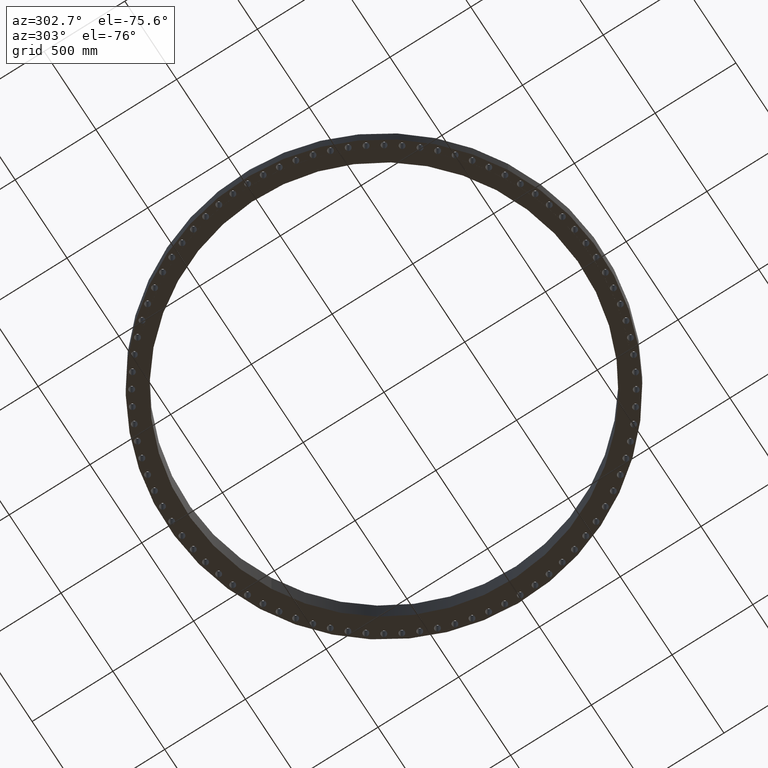
[diagram: clean part render]
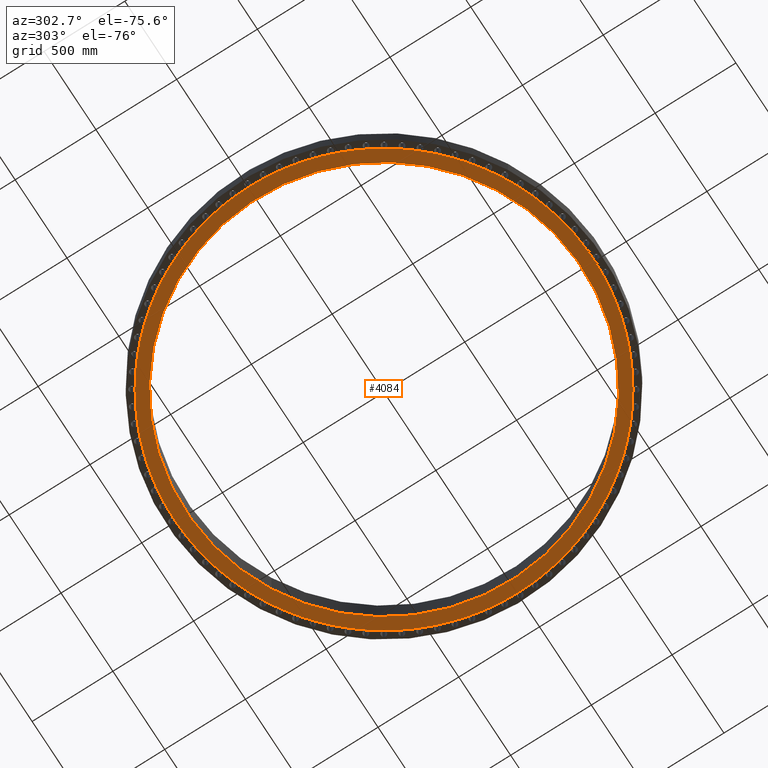
[diagram: same view with one face highlighted and labeled with its STEP entity id]
A machine part, auxiliary view. The second image highlights one B-rep face of the part: STEP entity #4084.
In plain terms, the highlighted planar face has unit normal (0, 0, -1).
Its self-contained STEP definition (entity closure, byte-faithful):
#91=AXIS2_PLACEMENT_3D('Circle Axis2P3D',#89,#90,$) ;
#366=AXIS2_PLACEMENT_3D('Circle Axis2P3D',#364,#365,$) ;
#385=AXIS2_PLACEMENT_3D('Circle Axis2P3D',#383,#384,$) ;
#402=AXIS2_PLACEMENT_3D('Circle Axis2P3D',#400,#401,$) ;
#444=AXIS2_PLACEMENT_3D('Circle Axis2P3D',#442,#443,$) ;
#472=AXIS2_PLACEMENT_3D('Circle Axis2P3D',#470,#471,$) ;
#514=AXIS2_PLACEMENT_3D('Circle Axis2P3D',#512,#513,$) ;
#533=AXIS2_PLACEMENT_3D('Circle Axis2P3D',#531,#532,$) ;
#568=AXIS2_PLACEMENT_3D('Circle Axis2P3D',#566,#567,$) ;
#603=AXIS2_PLACEMENT_3D('Circle Axis2P3D',#601,#602,$) ;
#638=AXIS2_PLACEMENT_3D('Circle Axis2P3D',#636,#637,$) ;
#673=AXIS2_PLACEMENT_3D('Circle Axis2P3D',#671,#672,$) ;
#708=AXIS2_PLACEMENT_3D('Circle Axis2P3D',#706,#707,$) ;
#743=AXIS2_PLACEMENT_3D('Circle Axis2P3D',#741,#742,$) ;
#787=AXIS2_PLACEMENT_3D('Circle Axis2P3D',#785,#786,$) ;
#813=AXIS2_PLACEMENT_3D('Circle Axis2P3D',#811,#812,$) ;
#864=AXIS2_PLACEMENT_3D('Circle Axis2P3D',#862,#863,$) ;
#883=AXIS2_PLACEMENT_3D('Circle Axis2P3D',#881,#882,$) ;
#941=AXIS2_PLACEMENT_3D('Circle Axis2P3D',#939,#940,$) ;
#962=AXIS2_PLACEMENT_3D('Circle Axis2P3D',#960,#961,$) ;
#988=AXIS2_PLACEMENT_3D('Circle Axis2P3D',#986,#987,$) ;
#1023=AXIS2_PLACEMENT_3D('Circle Axis2P3D',#1021,#1022,$) ;
#1058=AXIS2_PLACEMENT_3D('Circle Axis2P3D',#1056,#1057,$) ;
#1093=AXIS2_PLACEMENT_3D('Circle Axis2P3D',#1091,#1092,$) ;
#1128=AXIS2_PLACEMENT_3D('Circle Axis2P3D',#1126,#1127,$) ;
#1163=AXIS2_PLACEMENT_3D('Circle Axis2P3D',#1161,#1162,$) ;
#1198=AXIS2_PLACEMENT_3D('Circle Axis2P3D',#1196,#1197,$) ;
#1233=AXIS2_PLACEMENT_3D('Circle Axis2P3D',#1231,#1232,$) ;
#1268=AXIS2_PLACEMENT_3D('Circle Axis2P3D',#1266,#1267,$) ;
#1303=AXIS2_PLACEMENT_3D('Circle Axis2P3D',#1301,#1302,$) ;
#1338=AXIS2_PLACEMENT_3D('Circle Axis2P3D',#1336,#1337,$) ;
#1382=AXIS2_PLACEMENT_3D('Circle Axis2P3D',#1380,#1381,$) ;
#1417=AXIS2_PLACEMENT_3D('Circle Axis2P3D',#1415,#1416,$) ;
#1452=AXIS2_PLACEMENT_3D('Circle Axis2P3D',#1450,#1451,$) ;
#1487=AXIS2_PLACEMENT_3D('Circle Axis2P3D',#1485,#1486,$) ;
#1522=AXIS2_PLACEMENT_3D('Circle Axis2P3D',#1520,#1521,$) ;
#1557=AXIS2_PLACEMENT_3D('Circle Axis2P3D',#1555,#1556,$) ;
#1592=AXIS2_PLACEMENT_3D('Circle Axis2P3D',#1590,#1591,$) ;
#1627=AXIS2_PLACEMENT_3D('Circle Axis2P3D',#1625,#1626,$) ;
#1662=AXIS2_PLACEMENT_3D('Circle Axis2P3D',#1660,#1661,$) ;
#1697=AXIS2_PLACEMENT_3D('Circle Axis2P3D',#1695,#1696,$) ;
#1732=AXIS2_PLACEMENT_3D('Circle Axis2P3D',#1730,#1731,$) ;
#1767=AXIS2_PLACEMENT_3D('Circle Axis2P3D',#1765,#1766,$) ;
#1802=AXIS2_PLACEMENT_3D('Circle Axis2P3D',#1800,#1801,$) ;
#1837=AXIS2_PLACEMENT_3D('Circle Axis2P3D',#1835,#1836,$) ;
#1872=AXIS2_PLACEMENT_3D('Circle Axis2P3D',#1870,#1871,$) ;
#1907=AXIS2_PLACEMENT_3D('Circle Axis2P3D',#1905,#1906,$) ;
#1949=AXIS2_PLACEMENT_3D('Circle Axis2P3D',#1947,#1948,$) ;
#1968=AXIS2_PLACEMENT_3D('Circle Axis2P3D',#1966,#1967,$) ;
#2003=AXIS2_PLACEMENT_3D('Circle Axis2P3D',#2001,#2002,$) ;
#2038=AXIS2_PLACEMENT_3D('Circle Axis2P3D',#2036,#2037,$) ;
#2073=AXIS2_PLACEMENT_3D('Circle Axis2P3D',#2071,#2072,$) ;
#2108=AXIS2_PLACEMENT_3D('Circle Axis2P3D',#2106,#2107,$) ;
#2152=AXIS2_PLACEMENT_3D('Circle Axis2P3D',#2150,#2151,$) ;
#2187=AXIS2_PLACEMENT_3D('Circle Axis2P3D',#2185,#2186,$) ;
#2222=AXIS2_PLACEMENT_3D('Circle Axis2P3D',#2220,#2221,$) ;
#2264=AXIS2_PLACEMENT_3D('Circle Axis2P3D',#2262,#2263,$) ;
#2283=AXIS2_PLACEMENT_3D('Circle Axis2P3D',#2281,#2282,$) ;
#2318=AXIS2_PLACEMENT_3D('Circle Axis2P3D',#2316,#2317,$) ;
#2353=AXIS2_PLACEMENT_3D('Circle Axis2P3D',#2351,#2352,$) ;
#2388=AXIS2_PLACEMENT_3D('Circle Axis2P3D',#2386,#2387,$) ;
#2439=AXIS2_PLACEMENT_3D('Circle Axis2P3D',#2437,#2438,$) ;
#2474=AXIS2_PLACEMENT_3D('Circle Axis2P3D',#2472,#2473,$) ;
#2493=AXIS2_PLACEMENT_3D('Circle Axis2P3D',#2491,#2492,$) ;
#2542=AXIS2_PLACEMENT_3D('Circle Axis2P3D',#2540,#2541,$) ;
#2554=AXIS2_PLACEMENT_3D('Circle Axis2P3D',#2552,#2553,$) ;
#2605=AXIS2_PLACEMENT_3D('Circle Axis2P3D',#2603,#2604,$) ;
#2640=AXIS2_PLACEMENT_3D('Circle Axis2P3D',#2638,#2639,$) ;
#2675=AXIS2_PLACEMENT_3D('Circle Axis2P3D',#2673,#2674,$) ;
#2710=AXIS2_PLACEMENT_3D('Circle Axis2P3D',#2708,#2709,$) ;
#2745=AXIS2_PLACEMENT_3D('Circle Axis2P3D',#2743,#2744,$) ;
#2780=AXIS2_PLACEMENT_3D('Circle Axis2P3D',#2778,#2779,$) ;
#2815=AXIS2_PLACEMENT_3D('Circle Axis2P3D',#2813,#2814,$) ;
#2850=AXIS2_PLACEMENT_3D('Circle Axis2P3D',#2848,#2849,$) ;
#2885=AXIS2_PLACEMENT_3D('Circle Axis2P3D',#2883,#2884,$) ;
#2920=AXIS2_PLACEMENT_3D('Circle Axis2P3D',#2918,#2919,$) ;
#2955=AXIS2_PLACEMENT_3D('Circle Axis2P3D',#2953,#2954,$) ;
#2990=AXIS2_PLACEMENT_3D('Circle Axis2P3D',#2988,#2989,$) ;
#3025=AXIS2_PLACEMENT_3D('Circle Axis2P3D',#3023,#3024,$) ;
#3060=AXIS2_PLACEMENT_3D('Circle Axis2P3D',#3058,#3059,$) ;
#3102=AXIS2_PLACEMENT_3D('Circle Axis2P3D',#3100,#3101,$) ;
#3137=AXIS2_PLACEMENT_3D('Circle Axis2P3D',#3135,#3136,$) ;
#3172=AXIS2_PLACEMENT_3D('Circle Axis2P3D',#3170,#3171,$) ;
#3184=AXIS2_PLACEMENT_3D('Circle Axis2P3D',#3182,#3183,$) ;
#3235=AXIS2_PLACEMENT_3D('Circle Axis2P3D',#3233,#3234,$) ;
#3270=AXIS2_PLACEMENT_3D('Circle Axis2P3D',#3268,#3269,$) ;
#3312=AXIS2_PLACEMENT_3D('Circle Axis2P3D',#3310,#3311,$) ;
#3340=AXIS2_PLACEMENT_3D('Circle Axis2P3D',#3338,#3339,$) ;
#3359=AXIS2_PLACEMENT_3D('Circle Axis2P3D',#3357,#3358,$) ;
#3394=AXIS2_PLACEMENT_3D('Circle Axis2P3D',#3392,#3393,$) ;
#3429=AXIS2_PLACEMENT_3D('Circle Axis2P3D',#3427,#3428,$) ;
#3465=AXIS2_PLACEMENT_3D('Plane Axis2P3D',#3462,#3463,#3464) ;
#3469=AXIS2_PLACEMENT_3D('Circle Axis2P3D',#3467,#3468,$) ;
#3474=AXIS2_PLACEMENT_3D('Circle Axis2P3D',#3472,#3473,$) ;
#3479=AXIS2_PLACEMENT_3D('Circle Axis2P3D',#3477,#3478,$) ;
#3484=AXIS2_PLACEMENT_3D('Circle Axis2P3D',#3482,#3483,$) ;
#3489=AXIS2_PLACEMENT_3D('Circle Axis2P3D',#3487,#3488,$) ;
#3494=AXIS2_PLACEMENT_3D('Circle Axis2P3D',#3492,#3493,$) ;
#3499=AXIS2_PLACEMENT_3D('Circle Axis2P3D',#3497,#3498,$) ;
#3504=AXIS2_PLACEMENT_3D('Circle Axis2P3D',#3502,#3503,$) ;
#3509=AXIS2_PLACEMENT_3D('Circle Axis2P3D',#3507,#3508,$) ;
#3514=AXIS2_PLACEMENT_3D('Circle Axis2P3D',#3512,#3513,$) ;
#3519=AXIS2_PLACEMENT_3D('Circle Axis2P3D',#3517,#3518,$) ;
#3524=AXIS2_PLACEMENT_3D('Circle Axis2P3D',#3522,#3523,$) ;
#3529=AXIS2_PLACEMENT_3D('Circle Axis2P3D',#3527,#3528,$) ;
#3534=AXIS2_PLACEMENT_3D('Circle Axis2P3D',#3532,#3533,$) ;
#3539=AXIS2_PLACEMENT_3D('Circle Axis2P3D',#3537,#3538,$) ;
#3544=AXIS2_PLACEMENT_3D('Circle Axis2P3D',#3542,#3543,$) ;
#3549=AXIS2_PLACEMENT_3D('Circle Axis2P3D',#3547,#3548,$) ;
#3554=AXIS2_PLACEMENT_3D('Circle Axis2P3D',#3552,#3553,$) ;
#3559=AXIS2_PLACEMENT_3D('Circle Axis2P3D',#3557,#3558,$) ;
#3564=AXIS2_PLACEMENT_3D('Circle Axis2P3D',#3562,#3563,$) ;
#3569=AXIS2_PLACEMENT_3D('Circle Axis2P3D',#3567,#3568,$) ;
#3574=AXIS2_PLACEMENT_3D('Circle Axis2P3D',#3572,#3573,$) ;
#3579=AXIS2_PLACEMENT_3D('Circle Axis2P3D',#3577,#3578,$) ;
#3584=AXIS2_PLACEMENT_3D('Circle Axis2P3D',#3582,#3583,$) ;
#3589=AXIS2_PLACEMENT_3D('Circle Axis2P3D',#3587,#3588,$) ;
#3594=AXIS2_PLACEMENT_3D('Circle Axis2P3D',#3592,#3593,$) ;
#3599=AXIS2_PLACEMENT_3D('Circle Axis2P3D',#3597,#3598,$) ;
#3604=AXIS2_PLACEMENT_3D('Circle Axis2P3D',#3602,#3603,$) ;
#3609=AXIS2_PLACEMENT_3D('Circle Axis2P3D',#3607,#3608,$) ;
#3614=AXIS2_PLACEMENT_3D('Circle Axis2P3D',#3612,#3613,$) ;
#3619=AXIS2_PLACEMENT_3D('Circle Axis2P3D',#3617,#3618,$) ;
#3624=AXIS2_PLACEMENT_3D('Circle Axis2P3D',#3622,#3623,$) ;
#3629=AXIS2_PLACEMENT_3D('Circle Axis2P3D',#3627,#3628,$) ;
#3634=AXIS2_PLACEMENT_3D('Circle Axis2P3D',#3632,#3633,$) ;
#3639=AXIS2_PLACEMENT_3D('Circle Axis2P3D',#3637,#3638,$) ;
#3644=AXIS2_PLACEMENT_3D('Circle Axis2P3D',#3642,#3643,$) ;
#3649=AXIS2_PLACEMENT_3D('Circle Axis2P3D',#3647,#3648,$) ;
#3654=AXIS2_PLACEMENT_3D('Circle Axis2P3D',#3652,#3653,$) ;
#3659=AXIS2_PLACEMENT_3D('Circle Axis2P3D',#3657,#3658,$) ;
#3664=AXIS2_PLACEMENT_3D('Circle Axis2P3D',#3662,#3663,$) ;
#3669=AXIS2_PLACEMENT_3D('Circle Axis2P3D',#3667,#3668,$) ;
#3674=AXIS2_PLACEMENT_3D('Circle Axis2P3D',#3672,#3673,$) ;
#3679=AXIS2_PLACEMENT_3D('Circle Axis2P3D',#3677,#3678,$) ;
#3684=AXIS2_PLACEMENT_3D('Circle Axis2P3D',#3682,#3683,$) ;
#3689=AXIS2_PLACEMENT_3D('Circle Axis2P3D',#3687,#3688,$) ;
#3694=AXIS2_PLACEMENT_3D('Circle Axis2P3D',#3692,#3693,$) ;
#3699=AXIS2_PLACEMENT_3D('Circle Axis2P3D',#3697,#3698,$) ;
#3704=AXIS2_PLACEMENT_3D('Circle Axis2P3D',#3702,#3703,$) ;
#3709=AXIS2_PLACEMENT_3D('Circle Axis2P3D',#3707,#3708,$) ;
#3714=AXIS2_PLACEMENT_3D('Circle Axis2P3D',#3712,#3713,$) ;
#3719=AXIS2_PLACEMENT_3D('Circle Axis2P3D',#3717,#3718,$) ;
#3724=AXIS2_PLACEMENT_3D('Circle Axis2P3D',#3722,#3723,$) ;
#3729=AXIS2_PLACEMENT_3D('Circle Axis2P3D',#3727,#3728,$) ;
#3734=AXIS2_PLACEMENT_3D('Circle Axis2P3D',#3732,#3733,$) ;
#3739=AXIS2_PLACEMENT_3D('Circle Axis2P3D',#3737,#3738,$) ;
#3744=AXIS2_PLACEMENT_3D('Circle Axis2P3D',#3742,#3743,$) ;
#3749=AXIS2_PLACEMENT_3D('Circle Axis2P3D',#3747,#3748,$) ;
#3754=AXIS2_PLACEMENT_3D('Circle Axis2P3D',#3752,#3753,$) ;
#3759=AXIS2_PLACEMENT_3D('Circle Axis2P3D',#3757,#3758,$) ;
#3764=AXIS2_PLACEMENT_3D('Circle Axis2P3D',#3762,#3763,$) ;
#3769=AXIS2_PLACEMENT_3D('Circle Axis2P3D',#3767,#3768,$) ;
#3774=AXIS2_PLACEMENT_3D('Circle Axis2P3D',#3772,#3773,$) ;
#3779=AXIS2_PLACEMENT_3D('Circle Axis2P3D',#3777,#3778,$) ;
#3784=AXIS2_PLACEMENT_3D('Circle Axis2P3D',#3782,#3783,$) ;
#3789=AXIS2_PLACEMENT_3D('Circle Axis2P3D',#3787,#3788,$) ;
#3794=AXIS2_PLACEMENT_3D('Circle Axis2P3D',#3792,#3793,$) ;
#3799=AXIS2_PLACEMENT_3D('Circle Axis2P3D',#3797,#3798,$) ;
#3804=AXIS2_PLACEMENT_3D('Circle Axis2P3D',#3802,#3803,$) ;
#3809=AXIS2_PLACEMENT_3D('Circle Axis2P3D',#3807,#3808,$) ;
#3814=AXIS2_PLACEMENT_3D('Circle Axis2P3D',#3812,#3813,$) ;
#3819=AXIS2_PLACEMENT_3D('Circle Axis2P3D',#3817,#3818,$) ;
#3824=AXIS2_PLACEMENT_3D('Circle Axis2P3D',#3822,#3823,$) ;
#3829=AXIS2_PLACEMENT_3D('Circle Axis2P3D',#3827,#3828,$) ;
#3834=AXIS2_PLACEMENT_3D('Circle Axis2P3D',#3832,#3833,$) ;
#3839=AXIS2_PLACEMENT_3D('Circle Axis2P3D',#3837,#3838,$) ;
#3844=AXIS2_PLACEMENT_3D('Circle Axis2P3D',#3842,#3843,$) ;
#3849=AXIS2_PLACEMENT_3D('Circle Axis2P3D',#3847,#3848,$) ;
#3854=AXIS2_PLACEMENT_3D('Circle Axis2P3D',#3852,#3853,$) ;
#3859=AXIS2_PLACEMENT_3D('Circle Axis2P3D',#3857,#3858,$) ;
#3864=AXIS2_PLACEMENT_3D('Circle Axis2P3D',#3862,#3863,$) ;
#3869=AXIS2_PLACEMENT_3D('Circle Axis2P3D',#3867,#3868,$) ;
#3874=AXIS2_PLACEMENT_3D('Circle Axis2P3D',#3872,#3873,$) ;
#3879=AXIS2_PLACEMENT_3D('Circle Axis2P3D',#3877,#3878,$) ;
#3884=AXIS2_PLACEMENT_3D('Circle Axis2P3D',#3882,#3883,$) ;
#3889=AXIS2_PLACEMENT_3D('Circle Axis2P3D',#3887,#3888,$) ;
#3894=AXIS2_PLACEMENT_3D('Circle Axis2P3D',#3892,#3893,$) ;
#3899=AXIS2_PLACEMENT_3D('Circle Axis2P3D',#3897,#3898,$) ;
#86=CARTESIAN_POINT('Vertex',(51.0649335751,-0.08236499968,-0.0625000000002)) ;
#89=CARTESIAN_POINT('Axis2P3D Location',(51.7500000002,0.,-0.0625000000002)) ;
#93=CARTESIAN_POINT('Vertex',(51.0649335751,0.0823649996801,-0.0625000000002)) ;
#361=CARTESIAN_POINT('Vertex',(-23.0723540454,-42.2336607911,-0.0625000000003)) ;
#364=CARTESIAN_POINT('Axis2P3D Location',(0.,0.,-0.0625000000003)) ;
#368=CARTESIAN_POINT('Vertex',(23.0723540454,42.2336607911,-0.0625000000003)) ;
#383=CARTESIAN_POINT('Axis2P3D Location',(0.,0.,-0.0625000000003)) ;
#400=CARTESIAN_POINT('Axis2P3D Location',(0.,0.,-0.0625000000002)) ;
#404=CARTESIAN_POINT('Vertex',(50.5568879425,7.18577112043,-0.0625000000002)) ;
#406=CARTESIAN_POINT('Vertex',(50.9289501251,3.72508579447,-0.0625000000002)) ;
#442=CARTESIAN_POINT('Axis2P3D Location',(0.,0.,-0.0625000000002)) ;
#446=CARTESIAN_POINT('Vertex',(50.9407018287,3.56077550827,-0.0625000000002)) ;
#467=CARTESIAN_POINT('Vertex',(50.5334444192,7.34882440592,-0.0625000000002)) ;
#470=CARTESIAN_POINT('Axis2P3D Location',(0.,0.,-0.0625000000002)) ;
#474=CARTESIAN_POINT('Vertex',(49.9154477439,10.7741496901,-0.0625000000002)) ;
#509=CARTESIAN_POINT('Vertex',(49.8804318639,10.9351150927,-0.0625000000002)) ;
#512=CARTESIAN_POINT('Axis2P3D Location',(0.,0.,-0.0625000000002)) ;
#516=CARTESIAN_POINT('Vertex',(49.0196498653,14.3076256626,-0.0625000000002)) ;
#531=CARTESIAN_POINT('Axis2P3D Location',(0.,0.,-0.0625000000002)) ;
#535=CARTESIAN_POINT('Vertex',(47.8740590873,17.7681932543,-0.0625000000002)) ;
#537=CARTESIAN_POINT('Vertex',(48.9732400614,14.4656829395,-0.0625000000002)) ;
#566=CARTESIAN_POINT('Axis2P3D Location',(0.,0.,-0.0625000000002)) ;
#570=CARTESIAN_POINT('Vertex',(46.484513078,21.138218206,-0.0625000000002)) ;
#572=CARTESIAN_POINT('Vertex',(47.8164918533,17.9225369819,-0.0625000000002)) ;
#601=CARTESIAN_POINT('Axis2P3D Location',(0.,0.,-0.0625000000002)) ;
#605=CARTESIAN_POINT('Vertex',(44.8580926451,24.4005276431,-0.0625000000002)) ;
#607=CARTESIAN_POINT('Vertex',(46.4160817631,21.288061884,-0.0625000000002)) ;
#636=CARTESIAN_POINT('Axis2P3D Location',(0.,0.,-0.0625000000002)) ;
#640=CARTESIAN_POINT('Vertex',(43.0030856546,27.5384975844,-0.0625000000002)) ;
#642=CARTESIAN_POINT('Vertex',(44.7791459599,24.5451077025,-0.0625000000002)) ;
#671=CARTESIAN_POINT('Axis2P3D Location',(0.,0.,-0.0625000000002)) ;
#675=CARTESIAN_POINT('Vertex',(40.9289447967,30.5361376544,-0.0625000000002)) ;
#677=CARTESIAN_POINT('Vertex',(42.9140258931,27.6770772783,-0.0625000000002)) ;
#706=CARTESIAN_POINT('Axis2P3D Location',(0.,0.,-0.0625000000002)) ;
#710=CARTESIAN_POINT('Vertex',(38.6462394179,33.3781725664,-0.0625000000002)) ;
#712=CARTESIAN_POINT('Vertex',(40.8302257871,30.6680108125,-0.0625000000002)) ;
#741=CARTESIAN_POINT('Axis2P3D Location',(0.,0.,-0.0625000000002)) ;
#745=CARTESIAN_POINT('Vertex',(36.1666016616,36.050119962,-0.0625000000002)) ;
#747=CARTESIAN_POINT('Vertex',(38.5383642097,33.5026671933,-0.0625000000002)) ;
#782=CARTESIAN_POINT('Vertex',(36.050119962,36.1666016616,-0.0625000000002)) ;
#785=CARTESIAN_POINT('Axis2P3D Location',(0.,0.,-0.0625000000002)) ;
#789=CARTESIAN_POINT('Vertex',(33.5026671933,38.5383642097,-0.0625000000002)) ;
#811=CARTESIAN_POINT('Axis2P3D Location',(0.,0.,-0.0625000000002)) ;
#815=CARTESIAN_POINT('Vertex',(27.6770772783,42.9140258931,-0.0625000000002)) ;
#817=CARTESIAN_POINT('Vertex',(30.5361376544,40.9289447967,-0.0625000000002)) ;
#859=CARTESIAN_POINT('Vertex',(27.5384975844,43.0030856546,-0.0625000000002)) ;
#862=CARTESIAN_POINT('Axis2P3D Location',(0.,0.,-0.0625000000002)) ;
#866=CARTESIAN_POINT('Vertex',(24.5451077025,44.7791459599,-0.0625000000002)) ;
#881=CARTESIAN_POINT('Axis2P3D Location',(0.,0.,-0.0625000000002)) ;
#885=CARTESIAN_POINT('Vertex',(30.6680108125,40.8302257871,-0.0625000000002)) ;
#887=CARTESIAN_POINT('Vertex',(33.3781725664,38.6462394179,-0.0625000000002)) ;
#922=CARTESIAN_POINT('Vertex',(21.288061884,46.4160817631,-0.0625000000002)) ;
#936=CARTESIAN_POINT('Vertex',(24.4005276431,44.8580926451,-0.0625000000002)) ;
#939=CARTESIAN_POINT('Axis2P3D Location',(0.,0.,-0.0625000000002)) ;
#957=CARTESIAN_POINT('Vertex',(21.138218206,46.484513078,-0.0625000000002)) ;
#960=CARTESIAN_POINT('Axis2P3D Location',(0.,0.,-0.0625000000002)) ;
#964=CARTESIAN_POINT('Vertex',(17.9225369819,47.8164918533,-0.0625000000002)) ;
#986=CARTESIAN_POINT('Axis2P3D Location',(0.,0.,-0.0625000000002)) ;
#990=CARTESIAN_POINT('Vertex',(10.9351150927,49.8804318639,-0.0625000000002)) ;
#992=CARTESIAN_POINT('Vertex',(14.3076256626,49.0196498653,-0.0625000000002)) ;
#1021=CARTESIAN_POINT('Axis2P3D Location',(0.,0.,-0.0625000000002)) ;
#1025=CARTESIAN_POINT('Vertex',(7.34882440592,50.5334444192,-0.0625000000002)) ;
#1027=CARTESIAN_POINT('Vertex',(10.7741496901,49.9154477439,-0.0625000000002)) ;
#1056=CARTESIAN_POINT('Axis2P3D Location',(0.,0.,-0.0625000000002)) ;
#1060=CARTESIAN_POINT('Vertex',(3.72508579447,50.9289501251,-0.0625000000002)) ;
#1062=CARTESIAN_POINT('Vertex',(7.18577112043,50.5568879425,-0.0625000000002)) ;
#1091=CARTESIAN_POINT('Axis2P3D Location',(0.,0.,-0.0625000000002)) ;
#1095=CARTESIAN_POINT('Vertex',(0.08236499968,51.0649335751,-0.0625000000002)) ;
#1097=CARTESIAN_POINT('Vertex',(3.56077550827,50.9407018287,-0.0625000000002)) ;
#1126=CARTESIAN_POINT('Axis2P3D Location',(0.,0.,-0.0625000000002)) ;
#1130=CARTESIAN_POINT('Vertex',(-3.56077550827,50.9407018287,-0.0625000000002)) ;
#1132=CARTESIAN_POINT('Vertex',(-0.0823649996801,51.0649335751,-0.0625000000002)) ;
#1161=CARTESIAN_POINT('Axis2P3D Location',(0.,0.,-0.0625000000002)) ;
#1165=CARTESIAN_POINT('Vertex',(-7.18577112043,50.5568879425,-0.0625000000002)) ;
#1167=CARTESIAN_POINT('Vertex',(-3.72508579447,50.9289501251,-0.0625000000002)) ;
#1196=CARTESIAN_POINT('Axis2P3D Location',(0.,0.,-0.0625000000002)) ;
#1200=CARTESIAN_POINT('Vertex',(-10.7741496901,49.9154477439,-0.0625000000002)) ;
#1202=CARTESIAN_POINT('Vertex',(-7.34882440592,50.5334444192,-0.0625000000002)) ;
#1231=CARTESIAN_POINT('Axis2P3D Location',(0.,0.,-0.0625000000002)) ;
#1235=CARTESIAN_POINT('Vertex',(-14.3076256626,49.0196498653,-0.0625000000002)) ;
#1237=CARTESIAN_POINT('Vertex',(-10.9351150927,49.8804318639,-0.0625000000002)) ;
#1266=CARTESIAN_POINT('Axis2P3D Location',(0.,0.,-0.0625000000002)) ;
#1270=CARTESIAN_POINT('Vertex',(-17.7681932543,47.8740590873,-0.0625000000002)) ;
#1272=CARTESIAN_POINT('Vertex',(-14.4656829395,48.9732400614,-0.0625000000002)) ;
#1301=CARTESIAN_POINT('Axis2P3D Location',(0.,0.,-0.0625000000002)) ;
#1305=CARTESIAN_POINT('Vertex',(-21.138218206,46.484513078,-0.0625000000002)) ;
#1307=CARTESIAN_POINT('Vertex',(-17.9225369819,47.8164918533,-0.0625000000002)) ;
#1336=CARTESIAN_POINT('Axis2P3D Location',(0.,0.,-0.0625000000002)) ;
#1340=CARTESIAN_POINT('Vertex',(-24.4005276431,44.8580926451,-0.0625000000002)) ;
#1342=CARTESIAN_POINT('Vertex',(-21.288061884,46.4160817631,-0.0625000000002)) ;
#1377=CARTESIAN_POINT('Vertex',(-24.5451077025,44.7791459599,-0.0625000000002)) ;
#1380=CARTESIAN_POINT('Axis2P3D Location',(0.,0.,-0.0625000000002)) ;
#1384=CARTESIAN_POINT('Vertex',(-27.5384975844,43.0030856546,-0.0625000000002)) ;
#1412=CARTESIAN_POINT('Vertex',(-27.6770772783,42.9140258931,-0.0625000000002)) ;
#1415=CARTESIAN_POINT('Axis2P3D Location',(0.,0.,-0.0625000000002)) ;
#1419=CARTESIAN_POINT('Vertex',(-30.5361376544,40.9289447967,-0.0625000000002)) ;
#1447=CARTESIAN_POINT('Vertex',(-30.6680108125,40.8302257871,-0.0625000000002)) ;
#1450=CARTESIAN_POINT('Axis2P3D Location',(0.,0.,-0.0625000000002)) ;
#1454=CARTESIAN_POINT('Vertex',(-33.3781725664,38.6462394179,-0.0625000000002)) ;
#1482=CARTESIAN_POINT('Vertex',(-33.5026671933,38.5383642097,-0.0625000000002)) ;
#1485=CARTESIAN_POINT('Axis2P3D Location',(0.,0.,-0.0625000000002)) ;
#1489=CARTESIAN_POINT('Vertex',(-36.050119962,36.1666016616,-0.0625000000002)) ;
#1517=CARTESIAN_POINT('Vertex',(-36.1666016616,36.050119962,-0.0625000000002)) ;
#1520=CARTESIAN_POINT('Axis2P3D Location',(0.,0.,-0.0625000000002)) ;
#1524=CARTESIAN_POINT('Vertex',(-38.5383642097,33.5026671933,-0.0625000000002)) ;
#1552=CARTESIAN_POINT('Vertex',(-38.6462394179,33.3781725664,-0.0625000000002)) ;
#1555=CARTESIAN_POINT('Axis2P3D Location',(0.,0.,-0.0625000000002)) ;
#1559=CARTESIAN_POINT('Vertex',(-40.8302257871,30.6680108125,-0.0625000000002)) ;
#1587=CARTESIAN_POINT('Vertex',(-40.9289447967,30.5361376544,-0.0625000000002)) ;
#1590=CARTESIAN_POINT('Axis2P3D Location',(0.,0.,-0.0625000000002)) ;
#1594=CARTESIAN_POINT('Vertex',(-42.9140258931,27.6770772783,-0.0625000000002)) ;
#1622=CARTESIAN_POINT('Vertex',(-43.0030856546,27.5384975844,-0.0625000000002)) ;
#1625=CARTESIAN_POINT('Axis2P3D Location',(0.,0.,-0.0625000000002)) ;
#1629=CARTESIAN_POINT('Vertex',(-44.7791459599,24.5451077025,-0.0625000000002)) ;
#1657=CARTESIAN_POINT('Vertex',(-44.8580926451,24.4005276431,-0.0625000000002)) ;
#1660=CARTESIAN_POINT('Axis2P3D Location',(0.,0.,-0.0625000000002)) ;
#1664=CARTESIAN_POINT('Vertex',(-46.4160817631,21.288061884,-0.0625000000002)) ;
#1692=CARTESIAN_POINT('Vertex',(-46.484513078,21.138218206,-0.0625000000002)) ;
#1695=CARTESIAN_POINT('Axis2P3D Location',(0.,0.,-0.0625000000002)) ;
#1699=CARTESIAN_POINT('Vertex',(-47.8164918533,17.9225369819,-0.0625000000002)) ;
#1727=CARTESIAN_POINT('Vertex',(-47.8740590873,17.7681932543,-0.0625000000002)) ;
#1730=CARTESIAN_POINT('Axis2P3D Location',(0.,0.,-0.0625000000002)) ;
#1734=CARTESIAN_POINT('Vertex',(-48.9732400614,14.4656829395,-0.0625000000002)) ;
#1762=CARTESIAN_POINT('Vertex',(-49.0196498653,14.3076256626,-0.0625000000002)) ;
#1765=CARTESIAN_POINT('Axis2P3D Location',(0.,0.,-0.0625000000002)) ;
#1769=CARTESIAN_POINT('Vertex',(-49.8804318639,10.9351150927,-0.0625000000002)) ;
#1797=CARTESIAN_POINT('Vertex',(-49.9154477439,10.7741496901,-0.0625000000002)) ;
#1800=CARTESIAN_POINT('Axis2P3D Location',(0.,0.,-0.0625000000002)) ;
#1804=CARTESIAN_POINT('Vertex',(-50.5334444192,7.34882440592,-0.0625000000002)) ;
#1832=CARTESIAN_POINT('Vertex',(-50.5568879425,7.18577112043,-0.0625000000002)) ;
#1835=CARTESIAN_POINT('Axis2P3D Location',(0.,0.,-0.0625000000002)) ;
#1839=CARTESIAN_POINT('Vertex',(-50.9289501251,3.72508579447,-0.0625000000002)) ;
#1867=CARTESIAN_POINT('Vertex',(-50.9407018287,3.56077550827,-0.0625000000002)) ;
#1870=CARTESIAN_POINT('Axis2P3D Location',(0.,0.,-0.0625000000002)) ;
#1874=CARTESIAN_POINT('Vertex',(-51.0649335751,0.0823649996801,-0.0625000000002)) ;
#1902=CARTESIAN_POINT('Vertex',(-51.0649335751,-0.0823649996801,-0.0625000000002)) ;
#1905=CARTESIAN_POINT('Axis2P3D Location',(0.,0.,-0.0625000000002)) ;
#1909=CARTESIAN_POINT('Vertex',(-50.9407018287,-3.56077550827,-0.0625000000002)) ;
#1944=CARTESIAN_POINT('Vertex',(-50.9289501251,-3.72508579447,-0.0625000000002)) ;
#1947=CARTESIAN_POINT('Axis2P3D Location',(0.,0.,-0.0625000000002)) ;
#1951=CARTESIAN_POINT('Vertex',(-50.5568879425,-7.18577112043,-0.0625000000002)) ;
#1966=CARTESIAN_POINT('Axis2P3D Location',(0.,0.,-0.0625000000002)) ;
#1970=CARTESIAN_POINT('Vertex',(-47.8740590873,-17.7681932543,-0.0625000000002)) ;
#1972=CARTESIAN_POINT('Vertex',(-48.9732400614,-14.4656829395,-0.0625000000002)) ;
#2001=CARTESIAN_POINT('Axis2P3D Location',(0.,0.,-0.0625000000002)) ;
#2005=CARTESIAN_POINT('Vertex',(-46.484513078,-21.138218206,-0.0625000000002)) ;
#2007=CARTESIAN_POINT('Vertex',(-47.8164918533,-17.9225369819,-0.0625000000002)) ;
#2036=CARTESIAN_POINT('Axis2P3D Location',(0.,0.,-0.0625000000002)) ;
#2040=CARTESIAN_POINT('Vertex',(-44.8580926451,-24.4005276431,-0.0625000000002)) ;
#2042=CARTESIAN_POINT('Vertex',(-46.4160817631,-21.288061884,-0.0625000000002)) ;
#2071=CARTESIAN_POINT('Axis2P3D Location',(0.,0.,-0.0625000000002)) ;
#2075=CARTESIAN_POINT('Vertex',(-43.0030856546,-27.5384975844,-0.0625000000002)) ;
#2077=CARTESIAN_POINT('Vertex',(-44.7791459599,-24.5451077025,-0.0625000000002)) ;
#2106=CARTESIAN_POINT('Axis2P3D Location',(0.,0.,-0.0625000000002)) ;
#2110=CARTESIAN_POINT('Vertex',(-40.9289447967,-30.5361376544,-0.0625000000002)) ;
#2112=CARTESIAN_POINT('Vertex',(-42.9140258931,-27.6770772783,-0.0625000000002)) ;
#2147=CARTESIAN_POINT('Vertex',(-40.8302257871,-30.6680108125,-0.0625000000002)) ;
#2150=CARTESIAN_POINT('Axis2P3D Location',(0.,0.,-0.0625000000002)) ;
#2154=CARTESIAN_POINT('Vertex',(-38.6462394179,-33.3781725664,-0.0625000000002)) ;
#2182=CARTESIAN_POINT('Vertex',(-38.5383642097,-33.5026671933,-0.0625000000002)) ;
#2185=CARTESIAN_POINT('Axis2P3D Location',(0.,0.,-0.0625000000002)) ;
#2189=CARTESIAN_POINT('Vertex',(-36.1666016616,-36.050119962,-0.0625000000002)) ;
#2217=CARTESIAN_POINT('Vertex',(-36.050119962,-36.1666016616,-0.0625000000002)) ;
#2220=CARTESIAN_POINT('Axis2P3D Location',(0.,0.,-0.0625000000002)) ;
#2224=CARTESIAN_POINT('Vertex',(-33.5026671933,-38.5383642097,-0.0625000000002)) ;
#2259=CARTESIAN_POINT('Vertex',(-33.3781725664,-38.6462394179,-0.0625000000002)) ;
#2262=CARTESIAN_POINT('Axis2P3D Location',(0.,0.,-0.0625000000002)) ;
#2266=CARTESIAN_POINT('Vertex',(-30.6680108125,-40.8302257871,-0.0625000000002)) ;
#2281=CARTESIAN_POINT('Axis2P3D Location',(0.,0.,-0.0625000000002)) ;
#2285=CARTESIAN_POINT('Vertex',(-27.6770772783,-42.9140258931,-0.0625000000002)) ;
#2287=CARTESIAN_POINT('Vertex',(-30.5361376544,-40.9289447967,-0.0625000000002)) ;
#2316=CARTESIAN_POINT('Axis2P3D Location',(0.,0.,-0.0625000000002)) ;
#2320=CARTESIAN_POINT('Vertex',(-24.5451077025,-44.7791459599,-0.0625000000002)) ;
#2322=CARTESIAN_POINT('Vertex',(-27.5384975844,-43.0030856546,-0.0625000000002)) ;
#2351=CARTESIAN_POINT('Axis2P3D Location',(0.,0.,-0.0625000000002)) ;
#2355=CARTESIAN_POINT('Vertex',(-49.9154477439,-10.7741496901,-0.0625000000002)) ;
#2357=CARTESIAN_POINT('Vertex',(-50.5334444192,-7.34882440592,-0.0625000000002)) ;
#2386=CARTESIAN_POINT('Axis2P3D Location',(0.,0.,-0.0625000000002)) ;
#2390=CARTESIAN_POINT('Vertex',(-49.0196498653,-14.3076256626,-0.0625000000002)) ;
#2392=CARTESIAN_POINT('Vertex',(-49.8804318639,-10.9351150927,-0.0625000000002)) ;
#2434=CARTESIAN_POINT('Vertex',(17.7681932543,47.8740590873,-0.0625000000002)) ;
#2437=CARTESIAN_POINT('Axis2P3D Location',(0.,0.,-0.0625000000002)) ;
#2441=CARTESIAN_POINT('Vertex',(14.4656829395,48.9732400614,-0.0625000000002)) ;
#2469=CARTESIAN_POINT('Vertex',(50.5568879425,-7.18577112043,-0.0625000000002)) ;
#2472=CARTESIAN_POINT('Axis2P3D Location',(0.,0.,-0.0625000000002)) ;
#2476=CARTESIAN_POINT('Vertex',(50.9289501251,-3.72508579447,-0.0625000000002)) ;
#2491=CARTESIAN_POINT('Axis2P3D Location',(0.,0.,-0.0625000000002)) ;
#2495=CARTESIAN_POINT('Vertex',(50.9407018287,-3.56077550827,-0.0625000000002)) ;
#2523=CARTESIAN_POINT('Vertex',(50.5334444192,-7.34882440592,-0.0625000000002)) ;
#2537=CARTESIAN_POINT('Vertex',(49.9154477439,-10.7741496901,-0.0625000000002)) ;
#2540=CARTESIAN_POINT('Axis2P3D Location',(0.,0.,-0.0625000000002)) ;
#2552=CARTESIAN_POINT('Axis2P3D Location',(0.,0.,-0.0625000000002)) ;
#2556=CARTESIAN_POINT('Vertex',(49.8804318639,-10.9351150927,-0.0625000000002)) ;
#2558=CARTESIAN_POINT('Vertex',(49.0196498653,-14.3076256626,-0.0625000000002)) ;
#2600=CARTESIAN_POINT('Vertex',(47.8740590873,-17.7681932543,-0.0625000000002)) ;
#2603=CARTESIAN_POINT('Axis2P3D Location',(0.,0.,-0.0625000000002)) ;
#2607=CARTESIAN_POINT('Vertex',(48.9732400614,-14.4656829395,-0.0625000000002)) ;
#2635=CARTESIAN_POINT('Vertex',(46.484513078,-21.138218206,-0.0625000000002)) ;
#2638=CARTESIAN_POINT('Axis2P3D Location',(0.,0.,-0.0625000000002)) ;
#2642=CARTESIAN_POINT('Vertex',(47.8164918533,-17.9225369819,-0.0625000000002)) ;
#2670=CARTESIAN_POINT('Vertex',(44.8580926451,-24.4005276431,-0.0625000000002)) ;
#2673=CARTESIAN_POINT('Axis2P3D Location',(0.,0.,-0.0625000000002)) ;
#2677=CARTESIAN_POINT('Vertex',(46.4160817631,-21.288061884,-0.0625000000002)) ;
#2705=CARTESIAN_POINT('Vertex',(43.0030856546,-27.5384975844,-0.0625000000002)) ;
#2708=CARTESIAN_POINT('Axis2P3D Location',(0.,0.,-0.0625000000002)) ;
#2712=CARTESIAN_POINT('Vertex',(44.7791459599,-24.5451077025,-0.0625000000002)) ;
#2740=CARTESIAN_POINT('Vertex',(40.9289447967,-30.5361376544,-0.0625000000002)) ;
#2743=CARTESIAN_POINT('Axis2P3D Location',(0.,0.,-0.0625000000002)) ;
#2747=CARTESIAN_POINT('Vertex',(42.9140258931,-27.6770772783,-0.0625000000002)) ;
#2775=CARTESIAN_POINT('Vertex',(38.6462394179,-33.3781725664,-0.0625000000002)) ;
#2778=CARTESIAN_POINT('Axis2P3D Location',(0.,0.,-0.0625000000002)) ;
#2782=CARTESIAN_POINT('Vertex',(40.8302257871,-30.6680108125,-0.0625000000002)) ;
#2810=CARTESIAN_POINT('Vertex',(36.1666016616,-36.050119962,-0.0625000000002)) ;
#2813=CARTESIAN_POINT('Axis2P3D Location',(0.,0.,-0.0625000000002)) ;
#2817=CARTESIAN_POINT('Vertex',(38.5383642097,-33.5026671933,-0.0625000000002)) ;
#2845=CARTESIAN_POINT('Vertex',(33.5026671933,-38.5383642097,-0.0625000000002)) ;
#2848=CARTESIAN_POINT('Axis2P3D Location',(0.,0.,-0.0625000000002)) ;
#2852=CARTESIAN_POINT('Vertex',(36.050119962,-36.1666016616,-0.0625000000002)) ;
#2880=CARTESIAN_POINT('Vertex',(30.6680108125,-40.8302257871,-0.0625000000002)) ;
#2883=CARTESIAN_POINT('Axis2P3D Location',(0.,0.,-0.0625000000002)) ;
#2887=CARTESIAN_POINT('Vertex',(33.3781725664,-38.6462394179,-0.0625000000002)) ;
#2915=CARTESIAN_POINT('Vertex',(27.6770772783,-42.9140258931,-0.0625000000002)) ;
#2918=CARTESIAN_POINT('Axis2P3D Location',(0.,0.,-0.0625000000002)) ;
#2922=CARTESIAN_POINT('Vertex',(30.5361376544,-40.9289447967,-0.0625000000002)) ;
#2950=CARTESIAN_POINT('Vertex',(24.5451077025,-44.7791459599,-0.0625000000002)) ;
#2953=CARTESIAN_POINT('Axis2P3D Location',(0.,0.,-0.0625000000002)) ;
#2957=CARTESIAN_POINT('Vertex',(27.5384975844,-43.0030856546,-0.0625000000002)) ;
#2985=CARTESIAN_POINT('Vertex',(21.288061884,-46.4160817631,-0.0625000000002)) ;
#2988=CARTESIAN_POINT('Axis2P3D Location',(0.,0.,-0.0625000000002)) ;
#2992=CARTESIAN_POINT('Vertex',(24.4005276431,-44.8580926451,-0.0625000000002)) ;
#3020=CARTESIAN_POINT('Vertex',(17.9225369819,-47.8164918533,-0.0625000000002)) ;
#3023=CARTESIAN_POINT('Axis2P3D Location',(0.,0.,-0.0625000000002)) ;
#3027=CARTESIAN_POINT('Vertex',(21.138218206,-46.484513078,-0.0625000000002)) ;
#3055=CARTESIAN_POINT('Vertex',(14.4656829395,-48.9732400614,-0.0625000000002)) ;
#3058=CARTESIAN_POINT('Axis2P3D Location',(0.,0.,-0.0625000000002)) ;
#3062=CARTESIAN_POINT('Vertex',(17.7681932543,-47.8740590873,-0.0625000000002)) ;
#3083=CARTESIAN_POINT('Vertex',(14.3076256626,-49.0196498653,-0.0625000000002)) ;
#3097=CARTESIAN_POINT('Vertex',(10.9351150927,-49.8804318639,-0.0625000000002)) ;
#3100=CARTESIAN_POINT('Axis2P3D Location',(0.,0.,-0.0625000000002)) ;
#3118=CARTESIAN_POINT('Vertex',(10.7741496901,-49.9154477439,-0.0625000000002)) ;
#3132=CARTESIAN_POINT('Vertex',(7.34882440592,-50.5334444192,-0.0625000000002)) ;
#3135=CARTESIAN_POINT('Axis2P3D Location',(0.,0.,-0.0625000000002)) ;
#3153=CARTESIAN_POINT('Vertex',(7.18577112043,-50.5568879425,-0.0625000000002)) ;
#3167=CARTESIAN_POINT('Vertex',(3.72508579447,-50.9289501251,-0.0625000000002)) ;
#3170=CARTESIAN_POINT('Axis2P3D Location',(0.,0.,-0.0625000000002)) ;
#3182=CARTESIAN_POINT('Axis2P3D Location',(0.,0.,-0.0625000000002)) ;
#3186=CARTESIAN_POINT('Vertex',(-7.34882440592,-50.5334444192,-0.0625000000002)) ;
#3188=CARTESIAN_POINT('Vertex',(-10.7741496901,-49.9154477439,-0.0625000000002)) ;
#3230=CARTESIAN_POINT('Vertex',(-14.3076256626,-49.0196498653,-0.0625000000002)) ;
#3233=CARTESIAN_POINT('Axis2P3D Location',(0.,0.,-0.0625000000002)) ;
#3237=CARTESIAN_POINT('Vertex',(-10.9351150927,-49.8804318639,-0.0625000000002)) ;
#3265=CARTESIAN_POINT('Vertex',(-17.7681932543,-47.8740590873,-0.0625000000002)) ;
#3268=CARTESIAN_POINT('Axis2P3D Location',(0.,0.,-0.0625000000002)) ;
#3272=CARTESIAN_POINT('Vertex',(-14.4656829395,-48.9732400614,-0.0625000000002)) ;
#3293=CARTESIAN_POINT('Vertex',(-17.9225369819,-47.8164918533,-0.0625000000002)) ;
#3307=CARTESIAN_POINT('Vertex',(-21.138218206,-46.484513078,-0.0625000000002)) ;
#3310=CARTESIAN_POINT('Axis2P3D Location',(0.,0.,-0.0625000000002)) ;
#3335=CARTESIAN_POINT('Vertex',(-24.4005276431,-44.8580926451,-0.0625000000002)) ;
#3338=CARTESIAN_POINT('Axis2P3D Location',(0.,0.,-0.0625000000002)) ;
#3342=CARTESIAN_POINT('Vertex',(-21.288061884,-46.4160817631,-0.0625000000002)) ;
#3357=CARTESIAN_POINT('Axis2P3D Location',(0.,0.,-0.0625000000002)) ;
#3361=CARTESIAN_POINT('Vertex',(-0.0823649996801,-51.0649335751,-0.0625000000002)) ;
#3363=CARTESIAN_POINT('Vertex',(-3.56077550827,-50.9407018287,-0.0625000000002)) ;
#3392=CARTESIAN_POINT('Axis2P3D Location',(0.,0.,-0.0625000000002)) ;
#3396=CARTESIAN_POINT('Vertex',(3.56077550827,-50.9407018287,-0.0625000000002)) ;
#3398=CARTESIAN_POINT('Vertex',(0.0823649996801,-51.0649335751,-0.0625000000002)) ;
#3427=CARTESIAN_POINT('Axis2P3D Location',(0.,0.,-0.0625000000002)) ;
#3431=CARTESIAN_POINT('Vertex',(-3.72508579447,-50.9289501251,-0.0625000000002)) ;
#3433=CARTESIAN_POINT('Vertex',(-7.18577112043,-50.5568879425,-0.0625000000002)) ;
#3462=CARTESIAN_POINT('Axis2P3D Location',(0.,48.1250000002,-0.0625000000003)) ;
#3467=CARTESIAN_POINT('Axis2P3D Location',(51.2232596175,-7.36479288067,-0.0625000000003)) ;
#3472=CARTESIAN_POINT('Axis2P3D Location',(50.5673503142,-11.0002537344,-0.0625000000003)) ;
#3477=CARTESIAN_POINT('Axis2P3D Location',(49.6537613847,-14.5796598166,-0.0625000000003)) ;
#3482=CARTESIAN_POINT('Axis2P3D Location',(48.4871482689,-18.0847712943,-0.0625000000003)) ;
#3487=CARTESIAN_POINT('Axis2P3D Location',(47.0734557598,-21.4977269229,-0.0625000000003)) ;
#3492=CARTESIAN_POINT('Axis2P3D Location',(45.4198877103,-24.8011350629,-0.0625000000003)) ;
#3497=CARTESIAN_POINT('Axis2P3D Location',(43.5348703242,-27.9781623034,-0.0625000000003)) ;
#3502=CARTESIAN_POINT('Axis2P3D Location',(41.428009218,-31.0126192421,-0.0625000000003)) ;
#3507=CARTESIAN_POINT('Axis2P3D Location',(39.110040473,-33.8890429818,-0.0625000000003)) ;
#3512=CARTESIAN_POINT('Axis2P3D Location',(36.5927759266,-36.5927759266,-0.0625000000003)) ;
#3517=CARTESIAN_POINT('Axis2P3D Location',(33.8890429818,-39.110040473,-0.0625000000003)) ;
#3522=CARTESIAN_POINT('Axis2P3D Location',(31.0126192421,-41.428009218,-0.0625000000003)) ;
#3527=CARTESIAN_POINT('Axis2P3D Location',(27.9781623034,-43.5348703242,-0.0625000000003)) ;
#3532=CARTESIAN_POINT('Axis2P3D Location',(24.8011350629,-45.4198877103,-0.0625000000003)) ;
#3537=CARTESIAN_POINT('Axis2P3D Location',(21.4977269229,-47.0734557598,-0.0625000000003)) ;
#3542=CARTESIAN_POINT('Axis2P3D Location',(18.0847712943,-48.4871482689,-0.0625000000003)) ;
#3547=CARTESIAN_POINT('Axis2P3D Location',(14.5796598166,-49.6537613847,-0.0625000000003)) ;
#3552=CARTESIAN_POINT('Axis2P3D Location',(11.0002537344,-50.5673503142,-0.0625000000003)) ;
#3557=CARTESIAN_POINT('Axis2P3D Location',(7.36479288067,-51.2232596175,-0.0625000000003)) ;
#3562=CARTESIAN_POINT('Axis2P3D Location',(3.69180273058,-51.6181469313,-0.0625000000003)) ;
#3567=CARTESIAN_POINT('Axis2P3D Location',(-5.99695271569E-015,-51.7500000002,-0.0625000000003)) ;
#3572=CARTESIAN_POINT('Axis2P3D Location',(-3.69180273058,-51.6181469313,-0.0625000000003)) ;
#3577=CARTESIAN_POINT('Axis2P3D Location',(-7.36479288067,-51.2232596175,-0.0625000000003)) ;
#3582=CARTESIAN_POINT('Axis2P3D Location',(-11.0002537344,-50.5673503142,-0.0625000000003)) ;
#3587=CARTESIAN_POINT('Axis2P3D Location',(-14.5796598166,-49.6537613847,-0.0625000000003)) ;
#3592=CARTESIAN_POINT('Axis2P3D Location',(-18.0847712943,-48.4871482689,-0.0625000000003)) ;
#3597=CARTESIAN_POINT('Axis2P3D Location',(-21.4977269229,-47.0734557598,-0.0625000000003)) ;
#3602=CARTESIAN_POINT('Axis2P3D Location',(-24.8011350629,-45.4198877103,-0.0625000000003)) ;
#3607=CARTESIAN_POINT('Axis2P3D Location',(-27.9781623034,-43.5348703242,-0.0625000000003)) ;
#3612=CARTESIAN_POINT('Axis2P3D Location',(-31.0126192421,-41.428009218,-0.0625000000003)) ;
#3617=CARTESIAN_POINT('Axis2P3D Location',(-33.8890429818,-39.110040473,-0.0625000000003)) ;
#3622=CARTESIAN_POINT('Axis2P3D Location',(-36.5927759266,-36.5927759266,-0.0625000000003)) ;
#3627=CARTESIAN_POINT('Axis2P3D Location',(-39.110040473,-33.8890429818,-0.0625000000003)) ;
#3632=CARTESIAN_POINT('Axis2P3D Location',(-41.428009218,-31.0126192421,-0.0625000000003)) ;
#3637=CARTESIAN_POINT('Axis2P3D Location',(-43.5348703242,-27.9781623034,-0.0625000000003)) ;
#3642=CARTESIAN_POINT('Axis2P3D Location',(-45.4198877103,-24.8011350629,-0.0625000000003)) ;
#3647=CARTESIAN_POINT('Axis2P3D Location',(-47.0734557598,-21.4977269229,-0.0625000000003)) ;
#3652=CARTESIAN_POINT('Axis2P3D Location',(-48.4871482689,-18.0847712943,-0.0625000000003)) ;
#3657=CARTESIAN_POINT('Axis2P3D Location',(-49.6537613847,-14.5796598166,-0.0625000000003)) ;
#3662=CARTESIAN_POINT('Axis2P3D Location',(-50.5673503142,-11.0002537344,-0.0625000000003)) ;
#3667=CARTESIAN_POINT('Axis2P3D Location',(-51.2232596175,-7.36479288067,-0.0625000000003)) ;
#3672=CARTESIAN_POINT('Axis2P3D Location',(-51.6181469313,-3.69180273058,-0.0625000000003)) ;
#3677=CARTESIAN_POINT('Axis2P3D Location',(-51.7500000002,-8.95171950564E-015,-0.0625000000003)) ;
#3682=CARTESIAN_POINT('Axis2P3D Location',(-51.6181469313,3.69180273058,-0.0625000000003)) ;
#3687=CARTESIAN_POINT('Axis2P3D Location',(-51.2232596175,7.36479288067,-0.0625000000003)) ;
#3692=CARTESIAN_POINT('Axis2P3D Location',(-50.5673503142,11.0002537344,-0.0625000000003)) ;
#3697=CARTESIAN_POINT('Axis2P3D Location',(-49.6537613847,14.5796598166,-0.0625000000003)) ;
#3702=CARTESIAN_POINT('Axis2P3D Location',(-48.4871482689,18.0847712943,-0.0625000000003)) ;
#3707=CARTESIAN_POINT('Axis2P3D Location',(-47.0734557598,21.4977269229,-0.0625000000003)) ;
#3712=CARTESIAN_POINT('Axis2P3D Location',(-45.4198877103,24.8011350629,-0.0625000000003)) ;
#3717=CARTESIAN_POINT('Axis2P3D Location',(-43.5348703242,27.9781623034,-0.0625000000003)) ;
#3722=CARTESIAN_POINT('Axis2P3D Location',(-41.428009218,31.0126192421,-0.0625000000003)) ;
#3727=CARTESIAN_POINT('Axis2P3D Location',(-39.110040473,33.8890429818,-0.0625000000003)) ;
#3732=CARTESIAN_POINT('Axis2P3D Location',(-36.5927759266,36.5927759266,-0.0625000000003)) ;
#3737=CARTESIAN_POINT('Axis2P3D Location',(-33.8890429818,39.110040473,-0.0625000000003)) ;
#3742=CARTESIAN_POINT('Axis2P3D Location',(-31.0126192421,41.428009218,-0.0625000000003)) ;
#3747=CARTESIAN_POINT('Axis2P3D Location',(-27.9781623034,43.5348703242,-0.0625000000003)) ;
#3752=CARTESIAN_POINT('Axis2P3D Location',(-24.8011350629,45.4198877103,-0.0625000000003)) ;
#3757=CARTESIAN_POINT('Axis2P3D Location',(-21.4977269229,47.0734557598,-0.0625000000003)) ;
#3762=CARTESIAN_POINT('Axis2P3D Location',(-18.0847712943,48.4871482689,-0.0625000000003)) ;
#3767=CARTESIAN_POINT('Axis2P3D Location',(-14.5796598166,49.6537613847,-0.0625000000003)) ;
#3772=CARTESIAN_POINT('Axis2P3D Location',(-11.0002537344,50.5673503142,-0.0625000000003)) ;
#3777=CARTESIAN_POINT('Axis2P3D Location',(-7.36479288067,51.2232596175,-0.0625000000003)) ;
#3782=CARTESIAN_POINT('Axis2P3D Location',(-3.69180273058,51.6181469313,-0.0625000000003)) ;
#3787=CARTESIAN_POINT('Axis2P3D Location',(-8.95171950564E-015,51.7500000002,-0.0625000000003)) ;
#3792=CARTESIAN_POINT('Axis2P3D Location',(3.69180273058,51.6181469313,-0.0625000000003)) ;
#3797=CARTESIAN_POINT('Axis2P3D Location',(7.36479288067,51.2232596175,-0.0625000000003)) ;
#3802=CARTESIAN_POINT('Axis2P3D Location',(11.0002537344,50.5673503142,-0.0625000000003)) ;
#3807=CARTESIAN_POINT('Axis2P3D Location',(14.5796598166,49.6537613847,-0.0625000000003)) ;
#3812=CARTESIAN_POINT('Axis2P3D Location',(18.0847712943,48.4871482689,-0.0625000000003)) ;
#3817=CARTESIAN_POINT('Axis2P3D Location',(21.4977269229,47.0734557598,-0.0625000000003)) ;
#3822=CARTESIAN_POINT('Axis2P3D Location',(24.8011350629,45.4198877103,-0.0625000000003)) ;
#3827=CARTESIAN_POINT('Axis2P3D Location',(27.9781623034,43.5348703242,-0.0625000000003)) ;
#3832=CARTESIAN_POINT('Axis2P3D Location',(31.0126192421,41.428009218,-0.0625000000003)) ;
#3837=CARTESIAN_POINT('Axis2P3D Location',(33.8890429818,39.110040473,-0.0625000000003)) ;
#3842=CARTESIAN_POINT('Axis2P3D Location',(36.5927759266,36.5927759266,-0.0625000000003)) ;
#3847=CARTESIAN_POINT('Axis2P3D Location',(39.110040473,33.8890429818,-0.0625000000003)) ;
#3852=CARTESIAN_POINT('Axis2P3D Location',(41.428009218,31.0126192421,-0.0625000000003)) ;
#3857=CARTESIAN_POINT('Axis2P3D Location',(43.5348703242,27.9781623034,-0.0625000000003)) ;
#3862=CARTESIAN_POINT('Axis2P3D Location',(45.4198877103,24.8011350629,-0.0625000000003)) ;
#3867=CARTESIAN_POINT('Axis2P3D Location',(47.0734557598,21.4977269229,-0.0625000000003)) ;
#3872=CARTESIAN_POINT('Axis2P3D Location',(48.4871482689,18.0847712943,-0.0625000000003)) ;
#3877=CARTESIAN_POINT('Axis2P3D Location',(49.6537613847,14.5796598166,-0.0625000000003)) ;
#3882=CARTESIAN_POINT('Axis2P3D Location',(50.5673503142,11.0002537344,-0.0625000000003)) ;
#3887=CARTESIAN_POINT('Axis2P3D Location',(51.2232596175,7.36479288067,-0.0625000000003)) ;
#3892=CARTESIAN_POINT('Axis2P3D Location',(51.6181469313,3.69180273058,-0.0625000000003)) ;
#3897=CARTESIAN_POINT('Axis2P3D Location',(51.6181469313,-3.69180273058,-0.0625000000003)) ;
#90=DIRECTION('Axis2P3D Direction',(0.,-0.,-0.0393700787402)) ;
#365=DIRECTION('Axis2P3D Direction',(0.,0.,-0.0393700787402)) ;
#384=DIRECTION('Axis2P3D Direction',(0.,0.,-0.0393700787402)) ;
#401=DIRECTION('Axis2P3D Direction',(0.,0.,-0.0393700787402)) ;
#443=DIRECTION('Axis2P3D Direction',(0.,0.,-0.0393700787402)) ;
#471=DIRECTION('Axis2P3D Direction',(0.,0.,-0.0393700787402)) ;
#513=DIRECTION('Axis2P3D Direction',(0.,0.,-0.0393700787402)) ;
#532=DIRECTION('Axis2P3D Direction',(0.,0.,-0.0393700787402)) ;
#567=DIRECTION('Axis2P3D Direction',(0.,0.,-0.0393700787402)) ;
#602=DIRECTION('Axis2P3D Direction',(0.,0.,-0.0393700787402)) ;
#637=DIRECTION('Axis2P3D Direction',(0.,0.,-0.0393700787402)) ;
#672=DIRECTION('Axis2P3D Direction',(0.,0.,-0.0393700787402)) ;
#707=DIRECTION('Axis2P3D Direction',(0.,0.,-0.0393700787402)) ;
#742=DIRECTION('Axis2P3D Direction',(0.,0.,-0.0393700787402)) ;
#786=DIRECTION('Axis2P3D Direction',(0.,0.,-0.0393700787402)) ;
#812=DIRECTION('Axis2P3D Direction',(0.,0.,-0.0393700787402)) ;
#863=DIRECTION('Axis2P3D Direction',(0.,0.,-0.0393700787402)) ;
#882=DIRECTION('Axis2P3D Direction',(0.,0.,-0.0393700787402)) ;
#940=DIRECTION('Axis2P3D Direction',(0.,0.,-0.0393700787402)) ;
#961=DIRECTION('Axis2P3D Direction',(0.,0.,-0.0393700787402)) ;
#987=DIRECTION('Axis2P3D Direction',(0.,0.,-0.0393700787402)) ;
#1022=DIRECTION('Axis2P3D Direction',(0.,0.,-0.0393700787402)) ;
#1057=DIRECTION('Axis2P3D Direction',(0.,0.,-0.0393700787402)) ;
#1092=DIRECTION('Axis2P3D Direction',(0.,0.,-0.0393700787402)) ;
#1127=DIRECTION('Axis2P3D Direction',(0.,0.,-0.0393700787402)) ;
#1162=DIRECTION('Axis2P3D Direction',(0.,0.,-0.0393700787402)) ;
#1197=DIRECTION('Axis2P3D Direction',(0.,0.,-0.0393700787402)) ;
#1232=DIRECTION('Axis2P3D Direction',(0.,0.,-0.0393700787402)) ;
#1267=DIRECTION('Axis2P3D Direction',(0.,0.,-0.0393700787402)) ;
#1302=DIRECTION('Axis2P3D Direction',(0.,0.,-0.0393700787402)) ;
#1337=DIRECTION('Axis2P3D Direction',(0.,0.,-0.0393700787402)) ;
#1381=DIRECTION('Axis2P3D Direction',(0.,0.,-0.0393700787402)) ;
#1416=DIRECTION('Axis2P3D Direction',(0.,0.,-0.0393700787402)) ;
#1451=DIRECTION('Axis2P3D Direction',(0.,0.,-0.0393700787402)) ;
#1486=DIRECTION('Axis2P3D Direction',(0.,0.,-0.0393700787402)) ;
#1521=DIRECTION('Axis2P3D Direction',(0.,0.,-0.0393700787402)) ;
#1556=DIRECTION('Axis2P3D Direction',(0.,0.,-0.0393700787402)) ;
#1591=DIRECTION('Axis2P3D Direction',(0.,0.,-0.0393700787402)) ;
#1626=DIRECTION('Axis2P3D Direction',(0.,0.,-0.0393700787402)) ;
#1661=DIRECTION('Axis2P3D Direction',(0.,0.,-0.0393700787402)) ;
#1696=DIRECTION('Axis2P3D Direction',(0.,0.,-0.0393700787402)) ;
#1731=DIRECTION('Axis2P3D Direction',(0.,0.,-0.0393700787402)) ;
#1766=DIRECTION('Axis2P3D Direction',(0.,0.,-0.0393700787402)) ;
#1801=DIRECTION('Axis2P3D Direction',(0.,0.,-0.0393700787402)) ;
#1836=DIRECTION('Axis2P3D Direction',(0.,0.,-0.0393700787402)) ;
#1871=DIRECTION('Axis2P3D Direction',(0.,0.,-0.0393700787402)) ;
#1906=DIRECTION('Axis2P3D Direction',(0.,0.,-0.0393700787402)) ;
#1948=DIRECTION('Axis2P3D Direction',(0.,0.,-0.0393700787402)) ;
#1967=DIRECTION('Axis2P3D Direction',(0.,0.,-0.0393700787402)) ;
#2002=DIRECTION('Axis2P3D Direction',(0.,0.,-0.0393700787402)) ;
#2037=DIRECTION('Axis2P3D Direction',(0.,0.,-0.0393700787402)) ;
#2072=DIRECTION('Axis2P3D Direction',(0.,0.,-0.0393700787402)) ;
#2107=DIRECTION('Axis2P3D Direction',(0.,0.,-0.0393700787402)) ;
#2151=DIRECTION('Axis2P3D Direction',(0.,0.,-0.0393700787402)) ;
#2186=DIRECTION('Axis2P3D Direction',(0.,0.,-0.0393700787402)) ;
#2221=DIRECTION('Axis2P3D Direction',(0.,0.,-0.0393700787402)) ;
#2263=DIRECTION('Axis2P3D Direction',(0.,0.,-0.0393700787402)) ;
#2282=DIRECTION('Axis2P3D Direction',(0.,0.,-0.0393700787402)) ;
#2317=DIRECTION('Axis2P3D Direction',(0.,0.,-0.0393700787402)) ;
#2352=DIRECTION('Axis2P3D Direction',(0.,0.,-0.0393700787402)) ;
#2387=DIRECTION('Axis2P3D Direction',(0.,0.,-0.0393700787402)) ;
#2438=DIRECTION('Axis2P3D Direction',(0.,0.,-0.0393700787402)) ;
#2473=DIRECTION('Axis2P3D Direction',(0.,0.,-0.0393700787402)) ;
#2492=DIRECTION('Axis2P3D Direction',(0.,0.,-0.0393700787402)) ;
#2541=DIRECTION('Axis2P3D Direction',(0.,0.,-0.0393700787402)) ;
#2553=DIRECTION('Axis2P3D Direction',(0.,0.,-0.0393700787402)) ;
#2604=DIRECTION('Axis2P3D Direction',(0.,0.,-0.0393700787402)) ;
#2639=DIRECTION('Axis2P3D Direction',(0.,0.,-0.0393700787402)) ;
#2674=DIRECTION('Axis2P3D Direction',(0.,0.,-0.0393700787402)) ;
#2709=DIRECTION('Axis2P3D Direction',(0.,0.,-0.0393700787402)) ;
#2744=DIRECTION('Axis2P3D Direction',(0.,0.,-0.0393700787402)) ;
#2779=DIRECTION('Axis2P3D Direction',(0.,0.,-0.0393700787402)) ;
#2814=DIRECTION('Axis2P3D Direction',(0.,0.,-0.0393700787402)) ;
#2849=DIRECTION('Axis2P3D Direction',(0.,0.,-0.0393700787402)) ;
#2884=DIRECTION('Axis2P3D Direction',(0.,0.,-0.0393700787402)) ;
#2919=DIRECTION('Axis2P3D Direction',(0.,0.,-0.0393700787402)) ;
#2954=DIRECTION('Axis2P3D Direction',(0.,0.,-0.0393700787402)) ;
#2989=DIRECTION('Axis2P3D Direction',(0.,0.,-0.0393700787402)) ;
#3024=DIRECTION('Axis2P3D Direction',(0.,0.,-0.0393700787402)) ;
#3059=DIRECTION('Axis2P3D Direction',(0.,0.,-0.0393700787402)) ;
#3101=DIRECTION('Axis2P3D Direction',(0.,0.,-0.0393700787402)) ;
#3136=DIRECTION('Axis2P3D Direction',(0.,0.,-0.0393700787402)) ;
#3171=DIRECTION('Axis2P3D Direction',(0.,0.,-0.0393700787402)) ;
#3183=DIRECTION('Axis2P3D Direction',(0.,0.,-0.0393700787402)) ;
#3234=DIRECTION('Axis2P3D Direction',(0.,0.,-0.0393700787402)) ;
#3269=DIRECTION('Axis2P3D Direction',(0.,0.,-0.0393700787402)) ;
#3311=DIRECTION('Axis2P3D Direction',(0.,0.,-0.0393700787402)) ;
#3339=DIRECTION('Axis2P3D Direction',(0.,0.,-0.0393700787402)) ;
#3358=DIRECTION('Axis2P3D Direction',(0.,0.,-0.0393700787402)) ;
#3393=DIRECTION('Axis2P3D Direction',(0.,0.,-0.0393700787402)) ;
#3428=DIRECTION('Axis2P3D Direction',(0.,0.,-0.0393700787402)) ;
#3463=DIRECTION('Axis2P3D Direction',(0.,0.,-0.0393700787402)) ;
#3464=DIRECTION('Axis2P3D XDirection',(0.0393700787402,0.,0.)) ;
#3468=DIRECTION('Axis2P3D Direction',(0.,0.,-0.0393700787402)) ;
#3473=DIRECTION('Axis2P3D Direction',(0.,0.,-0.0393700787402)) ;
#3478=DIRECTION('Axis2P3D Direction',(0.,0.,-0.0393700787402)) ;
#3483=DIRECTION('Axis2P3D Direction',(0.,0.,-0.0393700787402)) ;
#3488=DIRECTION('Axis2P3D Direction',(0.,0.,-0.0393700787402)) ;
#3493=DIRECTION('Axis2P3D Direction',(0.,0.,-0.0393700787402)) ;
#3498=DIRECTION('Axis2P3D Direction',(0.,0.,-0.0393700787402)) ;
#3503=DIRECTION('Axis2P3D Direction',(0.,0.,-0.0393700787402)) ;
#3508=DIRECTION('Axis2P3D Direction',(0.,0.,-0.0393700787402)) ;
#3513=DIRECTION('Axis2P3D Direction',(0.,0.,-0.0393700787402)) ;
#3518=DIRECTION('Axis2P3D Direction',(0.,0.,-0.0393700787402)) ;
#3523=DIRECTION('Axis2P3D Direction',(0.,0.,-0.0393700787402)) ;
#3528=DIRECTION('Axis2P3D Direction',(0.,0.,-0.0393700787402)) ;
#3533=DIRECTION('Axis2P3D Direction',(0.,0.,-0.0393700787402)) ;
#3538=DIRECTION('Axis2P3D Direction',(0.,0.,-0.0393700787402)) ;
#3543=DIRECTION('Axis2P3D Direction',(0.,0.,-0.0393700787402)) ;
#3548=DIRECTION('Axis2P3D Direction',(0.,0.,-0.0393700787402)) ;
#3553=DIRECTION('Axis2P3D Direction',(0.,0.,-0.0393700787402)) ;
#3558=DIRECTION('Axis2P3D Direction',(0.,0.,-0.0393700787402)) ;
#3563=DIRECTION('Axis2P3D Direction',(0.,0.,-0.0393700787402)) ;
#3568=DIRECTION('Axis2P3D Direction',(0.,0.,-0.0393700787402)) ;
#3573=DIRECTION('Axis2P3D Direction',(0.,0.,-0.0393700787402)) ;
#3578=DIRECTION('Axis2P3D Direction',(0.,0.,-0.0393700787402)) ;
#3583=DIRECTION('Axis2P3D Direction',(0.,0.,-0.0393700787402)) ;
#3588=DIRECTION('Axis2P3D Direction',(0.,0.,-0.0393700787402)) ;
#3593=DIRECTION('Axis2P3D Direction',(0.,0.,-0.0393700787402)) ;
#3598=DIRECTION('Axis2P3D Direction',(0.,0.,-0.0393700787402)) ;
#3603=DIRECTION('Axis2P3D Direction',(0.,0.,-0.0393700787402)) ;
#3608=DIRECTION('Axis2P3D Direction',(0.,0.,-0.0393700787402)) ;
#3613=DIRECTION('Axis2P3D Direction',(0.,0.,-0.0393700787402)) ;
#3618=DIRECTION('Axis2P3D Direction',(0.,0.,-0.0393700787402)) ;
#3623=DIRECTION('Axis2P3D Direction',(0.,0.,-0.0393700787402)) ;
#3628=DIRECTION('Axis2P3D Direction',(0.,0.,-0.0393700787402)) ;
#3633=DIRECTION('Axis2P3D Direction',(0.,0.,-0.0393700787402)) ;
#3638=DIRECTION('Axis2P3D Direction',(0.,0.,-0.0393700787402)) ;
#3643=DIRECTION('Axis2P3D Direction',(0.,0.,-0.0393700787402)) ;
#3648=DIRECTION('Axis2P3D Direction',(0.,0.,-0.0393700787402)) ;
#3653=DIRECTION('Axis2P3D Direction',(0.,0.,-0.0393700787402)) ;
#3658=DIRECTION('Axis2P3D Direction',(0.,0.,-0.0393700787402)) ;
#3663=DIRECTION('Axis2P3D Direction',(0.,0.,-0.0393700787402)) ;
#3668=DIRECTION('Axis2P3D Direction',(0.,0.,-0.0393700787402)) ;
#3673=DIRECTION('Axis2P3D Direction',(0.,0.,-0.0393700787402)) ;
#3678=DIRECTION('Axis2P3D Direction',(0.,0.,-0.0393700787402)) ;
#3683=DIRECTION('Axis2P3D Direction',(0.,0.,-0.0393700787402)) ;
#3688=DIRECTION('Axis2P3D Direction',(0.,0.,-0.0393700787402)) ;
#3693=DIRECTION('Axis2P3D Direction',(0.,0.,-0.0393700787402)) ;
#3698=DIRECTION('Axis2P3D Direction',(0.,0.,-0.0393700787402)) ;
#3703=DIRECTION('Axis2P3D Direction',(0.,0.,-0.0393700787402)) ;
#3708=DIRECTION('Axis2P3D Direction',(0.,0.,-0.0393700787402)) ;
#3713=DIRECTION('Axis2P3D Direction',(0.,0.,-0.0393700787402)) ;
#3718=DIRECTION('Axis2P3D Direction',(0.,0.,-0.0393700787402)) ;
#3723=DIRECTION('Axis2P3D Direction',(0.,0.,-0.0393700787402)) ;
#3728=DIRECTION('Axis2P3D Direction',(0.,0.,-0.0393700787402)) ;
#3733=DIRECTION('Axis2P3D Direction',(0.,0.,-0.0393700787402)) ;
#3738=DIRECTION('Axis2P3D Direction',(0.,0.,-0.0393700787402)) ;
#3743=DIRECTION('Axis2P3D Direction',(0.,0.,-0.0393700787402)) ;
#3748=DIRECTION('Axis2P3D Direction',(0.,0.,-0.0393700787402)) ;
#3753=DIRECTION('Axis2P3D Direction',(0.,0.,-0.0393700787402)) ;
#3758=DIRECTION('Axis2P3D Direction',(0.,0.,-0.0393700787402)) ;
#3763=DIRECTION('Axis2P3D Direction',(0.,0.,-0.0393700787402)) ;
#3768=DIRECTION('Axis2P3D Direction',(0.,0.,-0.0393700787402)) ;
#3773=DIRECTION('Axis2P3D Direction',(0.,0.,-0.0393700787402)) ;
#3778=DIRECTION('Axis2P3D Direction',(0.,0.,-0.0393700787402)) ;
#3783=DIRECTION('Axis2P3D Direction',(0.,0.,-0.0393700787402)) ;
#3788=DIRECTION('Axis2P3D Direction',(0.,0.,-0.0393700787402)) ;
#3793=DIRECTION('Axis2P3D Direction',(0.,0.,-0.0393700787402)) ;
#3798=DIRECTION('Axis2P3D Direction',(0.,0.,-0.0393700787402)) ;
#3803=DIRECTION('Axis2P3D Direction',(0.,0.,-0.0393700787402)) ;
#3808=DIRECTION('Axis2P3D Direction',(0.,0.,-0.0393700787402)) ;
#3813=DIRECTION('Axis2P3D Direction',(0.,0.,-0.0393700787402)) ;
#3818=DIRECTION('Axis2P3D Direction',(0.,0.,-0.0393700787402)) ;
#3823=DIRECTION('Axis2P3D Direction',(0.,0.,-0.0393700787402)) ;
#3828=DIRECTION('Axis2P3D Direction',(0.,0.,-0.0393700787402)) ;
#3833=DIRECTION('Axis2P3D Direction',(0.,0.,-0.0393700787402)) ;
#3838=DIRECTION('Axis2P3D Direction',(0.,0.,-0.0393700787402)) ;
#3843=DIRECTION('Axis2P3D Direction',(0.,0.,-0.0393700787402)) ;
#3848=DIRECTION('Axis2P3D Direction',(0.,0.,-0.0393700787402)) ;
#3853=DIRECTION('Axis2P3D Direction',(0.,0.,-0.0393700787402)) ;
#3858=DIRECTION('Axis2P3D Direction',(0.,0.,-0.0393700787402)) ;
#3863=DIRECTION('Axis2P3D Direction',(0.,0.,-0.0393700787402)) ;
#3868=DIRECTION('Axis2P3D Direction',(0.,0.,-0.0393700787402)) ;
#3873=DIRECTION('Axis2P3D Direction',(0.,0.,-0.0393700787402)) ;
#3878=DIRECTION('Axis2P3D Direction',(0.,0.,-0.0393700787402)) ;
#3883=DIRECTION('Axis2P3D Direction',(0.,0.,-0.0393700787402)) ;
#3888=DIRECTION('Axis2P3D Direction',(0.,0.,-0.0393700787402)) ;
#3893=DIRECTION('Axis2P3D Direction',(0.,0.,-0.0393700787402)) ;
#3898=DIRECTION('Axis2P3D Direction',(0.,0.,-0.0393700787402)) ;
#3903=ORIENTED_EDGE('',*,*,#2478,.T.) ;
#3904=ORIENTED_EDGE('',*,*,#3471,.F.) ;
#3905=ORIENTED_EDGE('',*,*,#2544,.T.) ;
#3906=ORIENTED_EDGE('',*,*,#3476,.F.) ;
#3907=ORIENTED_EDGE('',*,*,#2560,.T.) ;
#3908=ORIENTED_EDGE('',*,*,#3481,.F.) ;
#3909=ORIENTED_EDGE('',*,*,#2609,.T.) ;
#3910=ORIENTED_EDGE('',*,*,#3486,.F.) ;
#3911=ORIENTED_EDGE('',*,*,#2644,.T.) ;
#3912=ORIENTED_EDGE('',*,*,#3491,.F.) ;
#3913=ORIENTED_EDGE('',*,*,#2679,.T.) ;
#3914=ORIENTED_EDGE('',*,*,#3496,.F.) ;
#3915=ORIENTED_EDGE('',*,*,#2714,.T.) ;
#3916=ORIENTED_EDGE('',*,*,#3501,.F.) ;
#3917=ORIENTED_EDGE('',*,*,#2749,.T.) ;
#3918=ORIENTED_EDGE('',*,*,#3506,.F.) ;
#3919=ORIENTED_EDGE('',*,*,#2784,.T.) ;
#3920=ORIENTED_EDGE('',*,*,#3511,.F.) ;
#3921=ORIENTED_EDGE('',*,*,#2819,.T.) ;
#3922=ORIENTED_EDGE('',*,*,#3516,.F.) ;
#3923=ORIENTED_EDGE('',*,*,#2854,.T.) ;
#3924=ORIENTED_EDGE('',*,*,#3521,.F.) ;
#3925=ORIENTED_EDGE('',*,*,#2889,.T.) ;
#3926=ORIENTED_EDGE('',*,*,#3526,.F.) ;
#3927=ORIENTED_EDGE('',*,*,#2924,.T.) ;
#3928=ORIENTED_EDGE('',*,*,#3531,.F.) ;
#3929=ORIENTED_EDGE('',*,*,#2959,.T.) ;
#3930=ORIENTED_EDGE('',*,*,#3536,.F.) ;
#3931=ORIENTED_EDGE('',*,*,#2994,.T.) ;
#3932=ORIENTED_EDGE('',*,*,#3541,.F.) ;
#3933=ORIENTED_EDGE('',*,*,#3029,.T.) ;
#3934=ORIENTED_EDGE('',*,*,#3546,.F.) ;
#3935=ORIENTED_EDGE('',*,*,#3064,.T.) ;
#3936=ORIENTED_EDGE('',*,*,#3551,.F.) ;
#3937=ORIENTED_EDGE('',*,*,#3104,.T.) ;
#3938=ORIENTED_EDGE('',*,*,#3556,.F.) ;
#3939=ORIENTED_EDGE('',*,*,#3139,.T.) ;
#3940=ORIENTED_EDGE('',*,*,#3561,.F.) ;
#3941=ORIENTED_EDGE('',*,*,#3174,.T.) ;
#3942=ORIENTED_EDGE('',*,*,#3566,.F.) ;
#3943=ORIENTED_EDGE('',*,*,#3400,.T.) ;
#3944=ORIENTED_EDGE('',*,*,#3571,.F.) ;
#3945=ORIENTED_EDGE('',*,*,#3365,.T.) ;
#3946=ORIENTED_EDGE('',*,*,#3576,.F.) ;
#3947=ORIENTED_EDGE('',*,*,#3435,.T.) ;
#3948=ORIENTED_EDGE('',*,*,#3581,.F.) ;
#3949=ORIENTED_EDGE('',*,*,#3190,.T.) ;
#3950=ORIENTED_EDGE('',*,*,#3586,.F.) ;
#3951=ORIENTED_EDGE('',*,*,#3239,.T.) ;
#3952=ORIENTED_EDGE('',*,*,#3591,.F.) ;
#3953=ORIENTED_EDGE('',*,*,#3274,.T.) ;
#3954=ORIENTED_EDGE('',*,*,#3596,.F.) ;
#3955=ORIENTED_EDGE('',*,*,#3314,.T.) ;
#3956=ORIENTED_EDGE('',*,*,#3601,.F.) ;
#3957=ORIENTED_EDGE('',*,*,#3344,.T.) ;
#3958=ORIENTED_EDGE('',*,*,#3606,.F.) ;
#3959=ORIENTED_EDGE('',*,*,#2324,.T.) ;
#3960=ORIENTED_EDGE('',*,*,#3611,.F.) ;
#3961=ORIENTED_EDGE('',*,*,#2289,.T.) ;
#3962=ORIENTED_EDGE('',*,*,#3616,.F.) ;
#3963=ORIENTED_EDGE('',*,*,#2268,.T.) ;
#3964=ORIENTED_EDGE('',*,*,#3621,.F.) ;
#3965=ORIENTED_EDGE('',*,*,#2226,.T.) ;
#3966=ORIENTED_EDGE('',*,*,#3626,.F.) ;
#3967=ORIENTED_EDGE('',*,*,#2191,.T.) ;
#3968=ORIENTED_EDGE('',*,*,#3631,.F.) ;
#3969=ORIENTED_EDGE('',*,*,#2156,.T.) ;
#3970=ORIENTED_EDGE('',*,*,#3636,.F.) ;
#3971=ORIENTED_EDGE('',*,*,#2114,.T.) ;
#3972=ORIENTED_EDGE('',*,*,#3641,.F.) ;
#3973=ORIENTED_EDGE('',*,*,#2079,.T.) ;
#3974=ORIENTED_EDGE('',*,*,#3646,.F.) ;
#3975=ORIENTED_EDGE('',*,*,#2044,.T.) ;
#3976=ORIENTED_EDGE('',*,*,#3651,.F.) ;
#3977=ORIENTED_EDGE('',*,*,#2009,.T.) ;
#3978=ORIENTED_EDGE('',*,*,#3656,.F.) ;
#3979=ORIENTED_EDGE('',*,*,#1974,.T.) ;
#3980=ORIENTED_EDGE('',*,*,#3661,.F.) ;
#3981=ORIENTED_EDGE('',*,*,#2394,.T.) ;
#3982=ORIENTED_EDGE('',*,*,#3666,.F.) ;
#3983=ORIENTED_EDGE('',*,*,#2359,.T.) ;
#3984=ORIENTED_EDGE('',*,*,#3671,.F.) ;
#3985=ORIENTED_EDGE('',*,*,#1953,.T.) ;
#3986=ORIENTED_EDGE('',*,*,#3676,.F.) ;
#3987=ORIENTED_EDGE('',*,*,#1911,.T.) ;
#3988=ORIENTED_EDGE('',*,*,#3681,.F.) ;
#3989=ORIENTED_EDGE('',*,*,#1876,.T.) ;
#3990=ORIENTED_EDGE('',*,*,#3686,.F.) ;
#3991=ORIENTED_EDGE('',*,*,#1841,.T.) ;
#3992=ORIENTED_EDGE('',*,*,#3691,.F.) ;
#3993=ORIENTED_EDGE('',*,*,#1806,.T.) ;
#3994=ORIENTED_EDGE('',*,*,#3696,.F.) ;
#3995=ORIENTED_EDGE('',*,*,#1771,.T.) ;
#3996=ORIENTED_EDGE('',*,*,#3701,.F.) ;
#3997=ORIENTED_EDGE('',*,*,#1736,.T.) ;
#3998=ORIENTED_EDGE('',*,*,#3706,.F.) ;
#3999=ORIENTED_EDGE('',*,*,#1701,.T.) ;
#4000=ORIENTED_EDGE('',*,*,#3711,.F.) ;
#4001=ORIENTED_EDGE('',*,*,#1666,.T.) ;
#4002=ORIENTED_EDGE('',*,*,#3716,.F.) ;
#4003=ORIENTED_EDGE('',*,*,#1631,.T.) ;
#4004=ORIENTED_EDGE('',*,*,#3721,.F.) ;
#4005=ORIENTED_EDGE('',*,*,#1596,.T.) ;
#4006=ORIENTED_EDGE('',*,*,#3726,.F.) ;
#4007=ORIENTED_EDGE('',*,*,#1561,.T.) ;
#4008=ORIENTED_EDGE('',*,*,#3731,.F.) ;
#4009=ORIENTED_EDGE('',*,*,#1526,.T.) ;
#4010=ORIENTED_EDGE('',*,*,#3736,.F.) ;
#4011=ORIENTED_EDGE('',*,*,#1491,.T.) ;
#4012=ORIENTED_EDGE('',*,*,#3741,.F.) ;
#4013=ORIENTED_EDGE('',*,*,#1456,.T.) ;
#4014=ORIENTED_EDGE('',*,*,#3746,.F.) ;
#4015=ORIENTED_EDGE('',*,*,#1421,.T.) ;
#4016=ORIENTED_EDGE('',*,*,#3751,.F.) ;
#4017=ORIENTED_EDGE('',*,*,#1386,.T.) ;
#4018=ORIENTED_EDGE('',*,*,#3756,.F.) ;
#4019=ORIENTED_EDGE('',*,*,#1344,.T.) ;
#4020=ORIENTED_EDGE('',*,*,#3761,.F.) ;
#4021=ORIENTED_EDGE('',*,*,#1309,.T.) ;
#4022=ORIENTED_EDGE('',*,*,#3766,.F.) ;
#4023=ORIENTED_EDGE('',*,*,#1274,.T.) ;
#4024=ORIENTED_EDGE('',*,*,#3771,.F.) ;
#4025=ORIENTED_EDGE('',*,*,#1239,.T.) ;
#4026=ORIENTED_EDGE('',*,*,#3776,.F.) ;
#4027=ORIENTED_EDGE('',*,*,#1204,.T.) ;
#4028=ORIENTED_EDGE('',*,*,#3781,.F.) ;
#4029=ORIENTED_EDGE('',*,*,#1169,.T.) ;
#4030=ORIENTED_EDGE('',*,*,#3786,.F.) ;
#4031=ORIENTED_EDGE('',*,*,#1134,.T.) ;
#4032=ORIENTED_EDGE('',*,*,#3791,.F.) ;
#4033=ORIENTED_EDGE('',*,*,#1099,.T.) ;
#4034=ORIENTED_EDGE('',*,*,#3796,.F.) ;
#4035=ORIENTED_EDGE('',*,*,#1064,.T.) ;
#4036=ORIENTED_EDGE('',*,*,#3801,.F.) ;
#4037=ORIENTED_EDGE('',*,*,#1029,.T.) ;
#4038=ORIENTED_EDGE('',*,*,#3806,.F.) ;
#4039=ORIENTED_EDGE('',*,*,#994,.T.) ;
#4040=ORIENTED_EDGE('',*,*,#3811,.F.) ;
#4041=ORIENTED_EDGE('',*,*,#2443,.T.) ;
#4042=ORIENTED_EDGE('',*,*,#3816,.F.) ;
#4043=ORIENTED_EDGE('',*,*,#966,.T.) ;
#4044=ORIENTED_EDGE('',*,*,#3821,.F.) ;
#4045=ORIENTED_EDGE('',*,*,#943,.T.) ;
#4046=ORIENTED_EDGE('',*,*,#3826,.F.) ;
#4047=ORIENTED_EDGE('',*,*,#868,.T.) ;
#4048=ORIENTED_EDGE('',*,*,#3831,.F.) ;
#4049=ORIENTED_EDGE('',*,*,#819,.T.) ;
#4050=ORIENTED_EDGE('',*,*,#3836,.F.) ;
#4051=ORIENTED_EDGE('',*,*,#889,.T.) ;
#4052=ORIENTED_EDGE('',*,*,#3841,.F.) ;
#4053=ORIENTED_EDGE('',*,*,#791,.T.) ;
#4054=ORIENTED_EDGE('',*,*,#3846,.F.) ;
#4055=ORIENTED_EDGE('',*,*,#749,.T.) ;
#4056=ORIENTED_EDGE('',*,*,#3851,.F.) ;
#4057=ORIENTED_EDGE('',*,*,#714,.T.) ;
#4058=ORIENTED_EDGE('',*,*,#3856,.F.) ;
#4059=ORIENTED_EDGE('',*,*,#679,.T.) ;
#4060=ORIENTED_EDGE('',*,*,#3861,.F.) ;
#4061=ORIENTED_EDGE('',*,*,#644,.T.) ;
#4062=ORIENTED_EDGE('',*,*,#3866,.F.) ;
#4063=ORIENTED_EDGE('',*,*,#609,.T.) ;
#4064=ORIENTED_EDGE('',*,*,#3871,.F.) ;
#4065=ORIENTED_EDGE('',*,*,#574,.T.) ;
#4066=ORIENTED_EDGE('',*,*,#3876,.F.) ;
#4067=ORIENTED_EDGE('',*,*,#539,.T.) ;
#4068=ORIENTED_EDGE('',*,*,#3881,.F.) ;
#4069=ORIENTED_EDGE('',*,*,#518,.T.) ;
#4070=ORIENTED_EDGE('',*,*,#3886,.F.) ;
#4071=ORIENTED_EDGE('',*,*,#476,.T.) ;
#4072=ORIENTED_EDGE('',*,*,#3891,.F.) ;
#4073=ORIENTED_EDGE('',*,*,#408,.T.) ;
#4074=ORIENTED_EDGE('',*,*,#3896,.F.) ;
#4075=ORIENTED_EDGE('',*,*,#448,.T.) ;
#4076=ORIENTED_EDGE('',*,*,#95,.F.) ;
#4077=ORIENTED_EDGE('',*,*,#2497,.T.) ;
#4078=ORIENTED_EDGE('',*,*,#3901,.F.) ;
#4081=ORIENTED_EDGE('',*,*,#387,.F.) ;
#4082=ORIENTED_EDGE('',*,*,#370,.F.) ;
#4083=FACE_BOUND('',#4080,.T.) ;
#4084=ADVANCED_FACE('PartBody',(#4079,#4083),#3466,.T.) ;
#92=CIRCLE('generated circle',#91,0.690000000003) ;
#367=CIRCLE('generated circle',#366,48.1250000002) ;
#386=CIRCLE('generated circle',#385,48.1250000002) ;
#403=CIRCLE('generated circle',#402,51.0650000002) ;
#445=CIRCLE('generated circle',#444,51.0650000002) ;
#473=CIRCLE('generated circle',#472,51.0650000002) ;
#515=CIRCLE('generated circle',#514,51.0650000002) ;
#534=CIRCLE('generated circle',#533,51.0650000002) ;
#569=CIRCLE('generated circle',#568,51.0650000002) ;
#604=CIRCLE('generated circle',#603,51.0650000002) ;
#639=CIRCLE('generated circle',#638,51.0650000002) ;
#674=CIRCLE('generated circle',#673,51.0650000002) ;
#709=CIRCLE('generated circle',#708,51.0650000002) ;
#744=CIRCLE('generated circle',#743,51.0650000002) ;
#788=CIRCLE('generated circle',#787,51.0650000002) ;
#814=CIRCLE('generated circle',#813,51.0650000002) ;
#865=CIRCLE('generated circle',#864,51.0650000002) ;
#884=CIRCLE('generated circle',#883,51.0650000002) ;
#942=CIRCLE('generated circle',#941,51.0650000002) ;
#963=CIRCLE('generated circle',#962,51.0650000002) ;
#989=CIRCLE('generated circle',#988,51.0650000002) ;
#1024=CIRCLE('generated circle',#1023,51.0650000002) ;
#1059=CIRCLE('generated circle',#1058,51.0650000002) ;
#1094=CIRCLE('generated circle',#1093,51.0650000002) ;
#1129=CIRCLE('generated circle',#1128,51.0650000002) ;
#1164=CIRCLE('generated circle',#1163,51.0650000002) ;
#1199=CIRCLE('generated circle',#1198,51.0650000002) ;
#1234=CIRCLE('generated circle',#1233,51.0650000002) ;
#1269=CIRCLE('generated circle',#1268,51.0650000002) ;
#1304=CIRCLE('generated circle',#1303,51.0650000002) ;
#1339=CIRCLE('generated circle',#1338,51.0650000002) ;
#1383=CIRCLE('generated circle',#1382,51.0650000002) ;
#1418=CIRCLE('generated circle',#1417,51.0650000002) ;
#1453=CIRCLE('generated circle',#1452,51.0650000002) ;
#1488=CIRCLE('generated circle',#1487,51.0650000002) ;
#1523=CIRCLE('generated circle',#1522,51.0650000002) ;
#1558=CIRCLE('generated circle',#1557,51.0650000002) ;
#1593=CIRCLE('generated circle',#1592,51.0650000002) ;
#1628=CIRCLE('generated circle',#1627,51.0650000002) ;
#1663=CIRCLE('generated circle',#1662,51.0650000002) ;
#1698=CIRCLE('generated circle',#1697,51.0650000002) ;
#1733=CIRCLE('generated circle',#1732,51.0650000002) ;
#1768=CIRCLE('generated circle',#1767,51.0650000002) ;
#1803=CIRCLE('generated circle',#1802,51.0650000002) ;
#1838=CIRCLE('generated circle',#1837,51.0650000002) ;
#1873=CIRCLE('generated circle',#1872,51.0650000002) ;
#1908=CIRCLE('generated circle',#1907,51.0650000002) ;
#1950=CIRCLE('generated circle',#1949,51.0650000002) ;
#1969=CIRCLE('generated circle',#1968,51.0650000002) ;
#2004=CIRCLE('generated circle',#2003,51.0650000002) ;
#2039=CIRCLE('generated circle',#2038,51.0650000002) ;
#2074=CIRCLE('generated circle',#2073,51.0650000002) ;
#2109=CIRCLE('generated circle',#2108,51.0650000002) ;
#2153=CIRCLE('generated circle',#2152,51.0650000002) ;
#2188=CIRCLE('generated circle',#2187,51.0650000002) ;
#2223=CIRCLE('generated circle',#2222,51.0650000002) ;
#2265=CIRCLE('generated circle',#2264,51.0650000002) ;
#2284=CIRCLE('generated circle',#2283,51.0650000002) ;
#2319=CIRCLE('generated circle',#2318,51.0650000002) ;
#2354=CIRCLE('generated circle',#2353,51.0650000002) ;
#2389=CIRCLE('generated circle',#2388,51.0650000002) ;
#2440=CIRCLE('generated circle',#2439,51.0650000002) ;
#2475=CIRCLE('generated circle',#2474,51.0650000002) ;
#2494=CIRCLE('generated circle',#2493,51.0650000002) ;
#2543=CIRCLE('generated circle',#2542,51.0650000002) ;
#2555=CIRCLE('generated circle',#2554,51.0650000002) ;
#2606=CIRCLE('generated circle',#2605,51.0650000002) ;
#2641=CIRCLE('generated circle',#2640,51.0650000002) ;
#2676=CIRCLE('generated circle',#2675,51.0650000002) ;
#2711=CIRCLE('generated circle',#2710,51.0650000002) ;
#2746=CIRCLE('generated circle',#2745,51.0650000002) ;
#2781=CIRCLE('generated circle',#2780,51.0650000002) ;
#2816=CIRCLE('generated circle',#2815,51.0650000002) ;
#2851=CIRCLE('generated circle',#2850,51.0650000002) ;
#2886=CIRCLE('generated circle',#2885,51.0650000002) ;
#2921=CIRCLE('generated circle',#2920,51.0650000002) ;
#2956=CIRCLE('generated circle',#2955,51.0650000002) ;
#2991=CIRCLE('generated circle',#2990,51.0650000002) ;
#3026=CIRCLE('generated circle',#3025,51.0650000002) ;
#3061=CIRCLE('generated circle',#3060,51.0650000002) ;
#3103=CIRCLE('generated circle',#3102,51.0650000002) ;
#3138=CIRCLE('generated circle',#3137,51.0650000002) ;
#3173=CIRCLE('generated circle',#3172,51.0650000002) ;
#3185=CIRCLE('generated circle',#3184,51.0650000002) ;
#3236=CIRCLE('generated circle',#3235,51.0650000002) ;
#3271=CIRCLE('generated circle',#3270,51.0650000002) ;
#3313=CIRCLE('generated circle',#3312,51.0650000002) ;
#3341=CIRCLE('generated circle',#3340,51.0650000002) ;
#3360=CIRCLE('generated circle',#3359,51.0650000002) ;
#3395=CIRCLE('generated circle',#3394,51.0650000002) ;
#3430=CIRCLE('generated circle',#3429,51.0650000002) ;
#3470=CIRCLE('generated circle',#3469,0.690000000003) ;
#3475=CIRCLE('generated circle',#3474,0.690000000003) ;
#3480=CIRCLE('generated circle',#3479,0.690000000003) ;
#3485=CIRCLE('generated circle',#3484,0.690000000003) ;
#3490=CIRCLE('generated circle',#3489,0.690000000003) ;
#3495=CIRCLE('generated circle',#3494,0.690000000003) ;
#3500=CIRCLE('generated circle',#3499,0.690000000003) ;
#3505=CIRCLE('generated circle',#3504,0.690000000003) ;
#3510=CIRCLE('generated circle',#3509,0.690000000003) ;
#3515=CIRCLE('generated circle',#3514,0.690000000003) ;
#3520=CIRCLE('generated circle',#3519,0.690000000003) ;
#3525=CIRCLE('generated circle',#3524,0.690000000003) ;
#3530=CIRCLE('generated circle',#3529,0.690000000003) ;
#3535=CIRCLE('generated circle',#3534,0.690000000003) ;
#3540=CIRCLE('generated circle',#3539,0.690000000003) ;
#3545=CIRCLE('generated circle',#3544,0.690000000003) ;
#3550=CIRCLE('generated circle',#3549,0.690000000003) ;
#3555=CIRCLE('generated circle',#3554,0.690000000003) ;
#3560=CIRCLE('generated circle',#3559,0.690000000003) ;
#3565=CIRCLE('generated circle',#3564,0.690000000003) ;
#3570=CIRCLE('generated circle',#3569,0.690000000003) ;
#3575=CIRCLE('generated circle',#3574,0.690000000003) ;
#3580=CIRCLE('generated circle',#3579,0.690000000003) ;
#3585=CIRCLE('generated circle',#3584,0.690000000003) ;
#3590=CIRCLE('generated circle',#3589,0.690000000003) ;
#3595=CIRCLE('generated circle',#3594,0.690000000003) ;
#3600=CIRCLE('generated circle',#3599,0.690000000003) ;
#3605=CIRCLE('generated circle',#3604,0.690000000003) ;
#3610=CIRCLE('generated circle',#3609,0.690000000003) ;
#3615=CIRCLE('generated circle',#3614,0.690000000003) ;
#3620=CIRCLE('generated circle',#3619,0.690000000003) ;
#3625=CIRCLE('generated circle',#3624,0.690000000003) ;
#3630=CIRCLE('generated circle',#3629,0.690000000003) ;
#3635=CIRCLE('generated circle',#3634,0.690000000003) ;
#3640=CIRCLE('generated circle',#3639,0.690000000003) ;
#3645=CIRCLE('generated circle',#3644,0.690000000003) ;
#3650=CIRCLE('generated circle',#3649,0.690000000003) ;
#3655=CIRCLE('generated circle',#3654,0.690000000003) ;
#3660=CIRCLE('generated circle',#3659,0.690000000003) ;
#3665=CIRCLE('generated circle',#3664,0.690000000003) ;
#3670=CIRCLE('generated circle',#3669,0.690000000003) ;
#3675=CIRCLE('generated circle',#3674,0.690000000003) ;
#3680=CIRCLE('generated circle',#3679,0.690000000003) ;
#3685=CIRCLE('generated circle',#3684,0.690000000003) ;
#3690=CIRCLE('generated circle',#3689,0.690000000003) ;
#3695=CIRCLE('generated circle',#3694,0.690000000003) ;
#3700=CIRCLE('generated circle',#3699,0.690000000003) ;
#3705=CIRCLE('generated circle',#3704,0.690000000003) ;
#3710=CIRCLE('generated circle',#3709,0.690000000003) ;
#3715=CIRCLE('generated circle',#3714,0.690000000003) ;
#3720=CIRCLE('generated circle',#3719,0.690000000003) ;
#3725=CIRCLE('generated circle',#3724,0.690000000003) ;
#3730=CIRCLE('generated circle',#3729,0.690000000003) ;
#3735=CIRCLE('generated circle',#3734,0.690000000003) ;
#3740=CIRCLE('generated circle',#3739,0.690000000003) ;
#3745=CIRCLE('generated circle',#3744,0.690000000003) ;
#3750=CIRCLE('generated circle',#3749,0.690000000003) ;
#3755=CIRCLE('generated circle',#3754,0.690000000003) ;
#3760=CIRCLE('generated circle',#3759,0.690000000003) ;
#3765=CIRCLE('generated circle',#3764,0.690000000003) ;
#3770=CIRCLE('generated circle',#3769,0.690000000003) ;
#3775=CIRCLE('generated circle',#3774,0.690000000003) ;
#3780=CIRCLE('generated circle',#3779,0.690000000003) ;
#3785=CIRCLE('generated circle',#3784,0.690000000003) ;
#3790=CIRCLE('generated circle',#3789,0.690000000003) ;
#3795=CIRCLE('generated circle',#3794,0.690000000003) ;
#3800=CIRCLE('generated circle',#3799,0.690000000003) ;
#3805=CIRCLE('generated circle',#3804,0.690000000003) ;
#3810=CIRCLE('generated circle',#3809,0.690000000003) ;
#3815=CIRCLE('generated circle',#3814,0.690000000003) ;
#3820=CIRCLE('generated circle',#3819,0.690000000003) ;
#3825=CIRCLE('generated circle',#3824,0.690000000003) ;
#3830=CIRCLE('generated circle',#3829,0.690000000003) ;
#3835=CIRCLE('generated circle',#3834,0.690000000003) ;
#3840=CIRCLE('generated circle',#3839,0.690000000003) ;
#3845=CIRCLE('generated circle',#3844,0.690000000003) ;
#3850=CIRCLE('generated circle',#3849,0.690000000003) ;
#3855=CIRCLE('generated circle',#3854,0.690000000003) ;
#3860=CIRCLE('generated circle',#3859,0.690000000003) ;
#3865=CIRCLE('generated circle',#3864,0.690000000003) ;
#3870=CIRCLE('generated circle',#3869,0.690000000003) ;
#3875=CIRCLE('generated circle',#3874,0.690000000003) ;
#3880=CIRCLE('generated circle',#3879,0.690000000003) ;
#3885=CIRCLE('generated circle',#3884,0.690000000003) ;
#3890=CIRCLE('generated circle',#3889,0.690000000003) ;
#3895=CIRCLE('generated circle',#3894,0.690000000003) ;
#3900=CIRCLE('generated circle',#3899,0.690000000003) ;
#95=EDGE_CURVE('',#87,#94,#92,.T.) ;
#370=EDGE_CURVE('',#362,#369,#367,.T.) ;
#387=EDGE_CURVE('',#369,#362,#386,.T.) ;
#408=EDGE_CURVE('',#405,#407,#403,.T.) ;
#448=EDGE_CURVE('',#447,#94,#445,.T.) ;
#476=EDGE_CURVE('',#475,#468,#473,.T.) ;
#518=EDGE_CURVE('',#517,#510,#515,.T.) ;
#539=EDGE_CURVE('',#536,#538,#534,.T.) ;
#574=EDGE_CURVE('',#571,#573,#569,.T.) ;
#609=EDGE_CURVE('',#606,#608,#604,.T.) ;
#644=EDGE_CURVE('',#641,#643,#639,.T.) ;
#679=EDGE_CURVE('',#676,#678,#674,.T.) ;
#714=EDGE_CURVE('',#711,#713,#709,.T.) ;
#749=EDGE_CURVE('',#746,#748,#744,.T.) ;
#791=EDGE_CURVE('',#790,#783,#788,.T.) ;
#819=EDGE_CURVE('',#816,#818,#814,.T.) ;
#868=EDGE_CURVE('',#867,#860,#865,.T.) ;
#889=EDGE_CURVE('',#886,#888,#884,.T.) ;
#943=EDGE_CURVE('',#923,#937,#942,.T.) ;
#966=EDGE_CURVE('',#965,#958,#963,.T.) ;
#994=EDGE_CURVE('',#991,#993,#989,.T.) ;
#1029=EDGE_CURVE('',#1026,#1028,#1024,.T.) ;
#1064=EDGE_CURVE('',#1061,#1063,#1059,.T.) ;
#1099=EDGE_CURVE('',#1096,#1098,#1094,.T.) ;
#1134=EDGE_CURVE('',#1131,#1133,#1129,.T.) ;
#1169=EDGE_CURVE('',#1166,#1168,#1164,.T.) ;
#1204=EDGE_CURVE('',#1201,#1203,#1199,.T.) ;
#1239=EDGE_CURVE('',#1236,#1238,#1234,.T.) ;
#1274=EDGE_CURVE('',#1271,#1273,#1269,.T.) ;
#1309=EDGE_CURVE('',#1306,#1308,#1304,.T.) ;
#1344=EDGE_CURVE('',#1341,#1343,#1339,.T.) ;
#1386=EDGE_CURVE('',#1385,#1378,#1383,.T.) ;
#1421=EDGE_CURVE('',#1420,#1413,#1418,.T.) ;
#1456=EDGE_CURVE('',#1455,#1448,#1453,.T.) ;
#1491=EDGE_CURVE('',#1490,#1483,#1488,.T.) ;
#1526=EDGE_CURVE('',#1525,#1518,#1523,.T.) ;
#1561=EDGE_CURVE('',#1560,#1553,#1558,.T.) ;
#1596=EDGE_CURVE('',#1595,#1588,#1593,.T.) ;
#1631=EDGE_CURVE('',#1630,#1623,#1628,.T.) ;
#1666=EDGE_CURVE('',#1665,#1658,#1663,.T.) ;
#1701=EDGE_CURVE('',#1700,#1693,#1698,.T.) ;
#1736=EDGE_CURVE('',#1735,#1728,#1733,.T.) ;
#1771=EDGE_CURVE('',#1770,#1763,#1768,.T.) ;
#1806=EDGE_CURVE('',#1805,#1798,#1803,.T.) ;
#1841=EDGE_CURVE('',#1840,#1833,#1838,.T.) ;
#1876=EDGE_CURVE('',#1875,#1868,#1873,.T.) ;
#1911=EDGE_CURVE('',#1910,#1903,#1908,.T.) ;
#1953=EDGE_CURVE('',#1952,#1945,#1950,.T.) ;
#1974=EDGE_CURVE('',#1971,#1973,#1969,.T.) ;
#2009=EDGE_CURVE('',#2006,#2008,#2004,.T.) ;
#2044=EDGE_CURVE('',#2041,#2043,#2039,.T.) ;
#2079=EDGE_CURVE('',#2076,#2078,#2074,.T.) ;
#2114=EDGE_CURVE('',#2111,#2113,#2109,.T.) ;
#2156=EDGE_CURVE('',#2155,#2148,#2153,.T.) ;
#2191=EDGE_CURVE('',#2190,#2183,#2188,.T.) ;
#2226=EDGE_CURVE('',#2225,#2218,#2223,.T.) ;
#2268=EDGE_CURVE('',#2267,#2260,#2265,.T.) ;
#2289=EDGE_CURVE('',#2286,#2288,#2284,.T.) ;
#2324=EDGE_CURVE('',#2321,#2323,#2319,.T.) ;
#2359=EDGE_CURVE('',#2356,#2358,#2354,.T.) ;
#2394=EDGE_CURVE('',#2391,#2393,#2389,.T.) ;
#2443=EDGE_CURVE('',#2442,#2435,#2440,.T.) ;
#2478=EDGE_CURVE('',#2477,#2470,#2475,.T.) ;
#2497=EDGE_CURVE('',#87,#2496,#2494,.T.) ;
#2544=EDGE_CURVE('',#2524,#2538,#2543,.T.) ;
#2560=EDGE_CURVE('',#2557,#2559,#2555,.T.) ;
#2609=EDGE_CURVE('',#2608,#2601,#2606,.T.) ;
#2644=EDGE_CURVE('',#2643,#2636,#2641,.T.) ;
#2679=EDGE_CURVE('',#2678,#2671,#2676,.T.) ;
#2714=EDGE_CURVE('',#2713,#2706,#2711,.T.) ;
#2749=EDGE_CURVE('',#2748,#2741,#2746,.T.) ;
#2784=EDGE_CURVE('',#2783,#2776,#2781,.T.) ;
#2819=EDGE_CURVE('',#2818,#2811,#2816,.T.) ;
#2854=EDGE_CURVE('',#2853,#2846,#2851,.T.) ;
#2889=EDGE_CURVE('',#2888,#2881,#2886,.T.) ;
#2924=EDGE_CURVE('',#2923,#2916,#2921,.T.) ;
#2959=EDGE_CURVE('',#2958,#2951,#2956,.T.) ;
#2994=EDGE_CURVE('',#2993,#2986,#2991,.T.) ;
#3029=EDGE_CURVE('',#3028,#3021,#3026,.T.) ;
#3064=EDGE_CURVE('',#3063,#3056,#3061,.T.) ;
#3104=EDGE_CURVE('',#3084,#3098,#3103,.T.) ;
#3139=EDGE_CURVE('',#3119,#3133,#3138,.T.) ;
#3174=EDGE_CURVE('',#3154,#3168,#3173,.T.) ;
#3190=EDGE_CURVE('',#3187,#3189,#3185,.T.) ;
#3239=EDGE_CURVE('',#3238,#3231,#3236,.T.) ;
#3274=EDGE_CURVE('',#3273,#3266,#3271,.T.) ;
#3314=EDGE_CURVE('',#3294,#3308,#3313,.T.) ;
#3344=EDGE_CURVE('',#3343,#3336,#3341,.T.) ;
#3365=EDGE_CURVE('',#3362,#3364,#3360,.T.) ;
#3400=EDGE_CURVE('',#3397,#3399,#3395,.T.) ;
#3435=EDGE_CURVE('',#3432,#3434,#3430,.T.) ;
#3471=EDGE_CURVE('',#2524,#2470,#3470,.T.) ;
#3476=EDGE_CURVE('',#2557,#2538,#3475,.T.) ;
#3481=EDGE_CURVE('',#2608,#2559,#3480,.T.) ;
#3486=EDGE_CURVE('',#2643,#2601,#3485,.T.) ;
#3491=EDGE_CURVE('',#2678,#2636,#3490,.T.) ;
#3496=EDGE_CURVE('',#2713,#2671,#3495,.T.) ;
#3501=EDGE_CURVE('',#2748,#2706,#3500,.T.) ;
#3506=EDGE_CURVE('',#2783,#2741,#3505,.T.) ;
#3511=EDGE_CURVE('',#2818,#2776,#3510,.T.) ;
#3516=EDGE_CURVE('',#2853,#2811,#3515,.T.) ;
#3521=EDGE_CURVE('',#2888,#2846,#3520,.T.) ;
#3526=EDGE_CURVE('',#2923,#2881,#3525,.T.) ;
#3531=EDGE_CURVE('',#2958,#2916,#3530,.T.) ;
#3536=EDGE_CURVE('',#2993,#2951,#3535,.T.) ;
#3541=EDGE_CURVE('',#3028,#2986,#3540,.T.) ;
#3546=EDGE_CURVE('',#3063,#3021,#3545,.T.) ;
#3551=EDGE_CURVE('',#3084,#3056,#3550,.T.) ;
#3556=EDGE_CURVE('',#3119,#3098,#3555,.T.) ;
#3561=EDGE_CURVE('',#3154,#3133,#3560,.T.) ;
#3566=EDGE_CURVE('',#3397,#3168,#3565,.T.) ;
#3571=EDGE_CURVE('',#3362,#3399,#3570,.T.) ;
#3576=EDGE_CURVE('',#3432,#3364,#3575,.T.) ;
#3581=EDGE_CURVE('',#3187,#3434,#3580,.T.) ;
#3586=EDGE_CURVE('',#3238,#3189,#3585,.T.) ;
#3591=EDGE_CURVE('',#3273,#3231,#3590,.T.) ;
#3596=EDGE_CURVE('',#3294,#3266,#3595,.T.) ;
#3601=EDGE_CURVE('',#3343,#3308,#3600,.T.) ;
#3606=EDGE_CURVE('',#2321,#3336,#3605,.T.) ;
#3611=EDGE_CURVE('',#2286,#2323,#3610,.T.) ;
#3616=EDGE_CURVE('',#2267,#2288,#3615,.T.) ;
#3621=EDGE_CURVE('',#2225,#2260,#3620,.T.) ;
#3626=EDGE_CURVE('',#2190,#2218,#3625,.T.) ;
#3631=EDGE_CURVE('',#2155,#2183,#3630,.T.) ;
#3636=EDGE_CURVE('',#2111,#2148,#3635,.T.) ;
#3641=EDGE_CURVE('',#2076,#2113,#3640,.T.) ;
#3646=EDGE_CURVE('',#2041,#2078,#3645,.T.) ;
#3651=EDGE_CURVE('',#2006,#2043,#3650,.T.) ;
#3656=EDGE_CURVE('',#1971,#2008,#3655,.T.) ;
#3661=EDGE_CURVE('',#2391,#1973,#3660,.T.) ;
#3666=EDGE_CURVE('',#2356,#2393,#3665,.T.) ;
#3671=EDGE_CURVE('',#1952,#2358,#3670,.T.) ;
#3676=EDGE_CURVE('',#1910,#1945,#3675,.T.) ;
#3681=EDGE_CURVE('',#1875,#1903,#3680,.T.) ;
#3686=EDGE_CURVE('',#1840,#1868,#3685,.T.) ;
#3691=EDGE_CURVE('',#1805,#1833,#3690,.T.) ;
#3696=EDGE_CURVE('',#1770,#1798,#3695,.T.) ;
#3701=EDGE_CURVE('',#1735,#1763,#3700,.T.) ;
#3706=EDGE_CURVE('',#1700,#1728,#3705,.T.) ;
#3711=EDGE_CURVE('',#1665,#1693,#3710,.T.) ;
#3716=EDGE_CURVE('',#1630,#1658,#3715,.T.) ;
#3721=EDGE_CURVE('',#1595,#1623,#3720,.T.) ;
#3726=EDGE_CURVE('',#1560,#1588,#3725,.T.) ;
#3731=EDGE_CURVE('',#1525,#1553,#3730,.T.) ;
#3736=EDGE_CURVE('',#1490,#1518,#3735,.T.) ;
#3741=EDGE_CURVE('',#1455,#1483,#3740,.T.) ;
#3746=EDGE_CURVE('',#1420,#1448,#3745,.T.) ;
#3751=EDGE_CURVE('',#1385,#1413,#3750,.T.) ;
#3756=EDGE_CURVE('',#1341,#1378,#3755,.T.) ;
#3761=EDGE_CURVE('',#1306,#1343,#3760,.T.) ;
#3766=EDGE_CURVE('',#1271,#1308,#3765,.T.) ;
#3771=EDGE_CURVE('',#1236,#1273,#3770,.T.) ;
#3776=EDGE_CURVE('',#1201,#1238,#3775,.T.) ;
#3781=EDGE_CURVE('',#1166,#1203,#3780,.T.) ;
#3786=EDGE_CURVE('',#1131,#1168,#3785,.T.) ;
#3791=EDGE_CURVE('',#1096,#1133,#3790,.T.) ;
#3796=EDGE_CURVE('',#1061,#1098,#3795,.T.) ;
#3801=EDGE_CURVE('',#1026,#1063,#3800,.T.) ;
#3806=EDGE_CURVE('',#991,#1028,#3805,.T.) ;
#3811=EDGE_CURVE('',#2442,#993,#3810,.T.) ;
#3816=EDGE_CURVE('',#965,#2435,#3815,.T.) ;
#3821=EDGE_CURVE('',#923,#958,#3820,.T.) ;
#3826=EDGE_CURVE('',#867,#937,#3825,.T.) ;
#3831=EDGE_CURVE('',#816,#860,#3830,.T.) ;
#3836=EDGE_CURVE('',#886,#818,#3835,.T.) ;
#3841=EDGE_CURVE('',#790,#888,#3840,.T.) ;
#3846=EDGE_CURVE('',#746,#783,#3845,.T.) ;
#3851=EDGE_CURVE('',#711,#748,#3850,.T.) ;
#3856=EDGE_CURVE('',#676,#713,#3855,.T.) ;
#3861=EDGE_CURVE('',#641,#678,#3860,.T.) ;
#3866=EDGE_CURVE('',#606,#643,#3865,.T.) ;
#3871=EDGE_CURVE('',#571,#608,#3870,.T.) ;
#3876=EDGE_CURVE('',#536,#573,#3875,.T.) ;
#3881=EDGE_CURVE('',#517,#538,#3880,.T.) ;
#3886=EDGE_CURVE('',#475,#510,#3885,.T.) ;
#3891=EDGE_CURVE('',#405,#468,#3890,.T.) ;
#3896=EDGE_CURVE('',#447,#407,#3895,.T.) ;
#3901=EDGE_CURVE('',#2477,#2496,#3900,.T.) ;
#3902=EDGE_LOOP('',(#3903,#3904,#3905,#3906,#3907,#3908,#3909,#3910,#3911,#3912,#3913,#3914,#3915,#3916,#3917,#3918,#3919,#3920,#3921,#3922,#3923,#3924,#3925,#3926,#3927,#3928,#3929,#3930,#3931,#3932,#3933,#3934,#3935,#3936,#3937,#3938,#3939,#3940,#3941,#3942,#3943,#3944,#3945,#3946,#3947,#3948,#3949,#3950,#3951,#3952,#3953,#3954,#3955,#3956,#3957,#3958,#3959,#3960,#3961,#3962,#3963,#3964,#3965,#3966,#3967,#3968,#3969,#3970,#3971,#3972,#3973,#3974,#3975,#3976,#3977,#3978,#3979,#3980,#3981,#3982,#3983,#3984,#3985,#3986,#3987,#3988,#3989,#3990,#3991,#3992,#3993,#3994,#3995,#3996,#3997,#3998,#3999,#4000,#4001,#4002,#4003,#4004,#4005,#4006,#4007,#4008,#4009,#4010,#4011,#4012,#4013,#4014,#4015,#4016,#4017,#4018,#4019,#4020,#4021,#4022,#4023,#4024,#4025,#4026,#4027,#4028,#4029,#4030,#4031,#4032,#4033,#4034,#4035,#4036,#4037,#4038,#4039,#4040,#4041,#4042,#4043,#4044,#4045,#4046,#4047,#4048,#4049,#4050,#4051,#4052,#4053,#4054,#4055,#4056,#4057,#4058,#4059,#4060,#4061,#4062,#4063,#4064,#4065,#4066,#4067,#4068,#4069,#4070,#4071,#4072,#4073,#4074,#4075,#4076,#4077,#4078)) ;
#4080=EDGE_LOOP('',(#4081,#4082)) ;
#4079=FACE_OUTER_BOUND('',#3902,.T.) ;
#3466=PLANE('',#3465) ;
#87=VERTEX_POINT('',#86) ;
#94=VERTEX_POINT('',#93) ;
#362=VERTEX_POINT('',#361) ;
#369=VERTEX_POINT('',#368) ;
#405=VERTEX_POINT('',#404) ;
#407=VERTEX_POINT('',#406) ;
#447=VERTEX_POINT('',#446) ;
#468=VERTEX_POINT('',#467) ;
#475=VERTEX_POINT('',#474) ;
#510=VERTEX_POINT('',#509) ;
#517=VERTEX_POINT('',#516) ;
#536=VERTEX_POINT('',#535) ;
#538=VERTEX_POINT('',#537) ;
#571=VERTEX_POINT('',#570) ;
#573=VERTEX_POINT('',#572) ;
#606=VERTEX_POINT('',#605) ;
#608=VERTEX_POINT('',#607) ;
#641=VERTEX_POINT('',#640) ;
#643=VERTEX_POINT('',#642) ;
#676=VERTEX_POINT('',#675) ;
#678=VERTEX_POINT('',#677) ;
#711=VERTEX_POINT('',#710) ;
#713=VERTEX_POINT('',#712) ;
#746=VERTEX_POINT('',#745) ;
#748=VERTEX_POINT('',#747) ;
#783=VERTEX_POINT('',#782) ;
#790=VERTEX_POINT('',#789) ;
#816=VERTEX_POINT('',#815) ;
#818=VERTEX_POINT('',#817) ;
#860=VERTEX_POINT('',#859) ;
#867=VERTEX_POINT('',#866) ;
#886=VERTEX_POINT('',#885) ;
#888=VERTEX_POINT('',#887) ;
#923=VERTEX_POINT('',#922) ;
#937=VERTEX_POINT('',#936) ;
#958=VERTEX_POINT('',#957) ;
#965=VERTEX_POINT('',#964) ;
#991=VERTEX_POINT('',#990) ;
#993=VERTEX_POINT('',#992) ;
#1026=VERTEX_POINT('',#1025) ;
#1028=VERTEX_POINT('',#1027) ;
#1061=VERTEX_POINT('',#1060) ;
#1063=VERTEX_POINT('',#1062) ;
#1096=VERTEX_POINT('',#1095) ;
#1098=VERTEX_POINT('',#1097) ;
#1131=VERTEX_POINT('',#1130) ;
#1133=VERTEX_POINT('',#1132) ;
#1166=VERTEX_POINT('',#1165) ;
#1168=VERTEX_POINT('',#1167) ;
#1201=VERTEX_POINT('',#1200) ;
#1203=VERTEX_POINT('',#1202) ;
#1236=VERTEX_POINT('',#1235) ;
#1238=VERTEX_POINT('',#1237) ;
#1271=VERTEX_POINT('',#1270) ;
#1273=VERTEX_POINT('',#1272) ;
#1306=VERTEX_POINT('',#1305) ;
#1308=VERTEX_POINT('',#1307) ;
#1341=VERTEX_POINT('',#1340) ;
#1343=VERTEX_POINT('',#1342) ;
#1378=VERTEX_POINT('',#1377) ;
#1385=VERTEX_POINT('',#1384) ;
#1413=VERTEX_POINT('',#1412) ;
#1420=VERTEX_POINT('',#1419) ;
#1448=VERTEX_POINT('',#1447) ;
#1455=VERTEX_POINT('',#1454) ;
#1483=VERTEX_POINT('',#1482) ;
#1490=VERTEX_POINT('',#1489) ;
#1518=VERTEX_POINT('',#1517) ;
#1525=VERTEX_POINT('',#1524) ;
#1553=VERTEX_POINT('',#1552) ;
#1560=VERTEX_POINT('',#1559) ;
#1588=VERTEX_POINT('',#1587) ;
#1595=VERTEX_POINT('',#1594) ;
#1623=VERTEX_POINT('',#1622) ;
#1630=VERTEX_POINT('',#1629) ;
#1658=VERTEX_POINT('',#1657) ;
#1665=VERTEX_POINT('',#1664) ;
#1693=VERTEX_POINT('',#1692) ;
#1700=VERTEX_POINT('',#1699) ;
#1728=VERTEX_POINT('',#1727) ;
#1735=VERTEX_POINT('',#1734) ;
#1763=VERTEX_POINT('',#1762) ;
#1770=VERTEX_POINT('',#1769) ;
#1798=VERTEX_POINT('',#1797) ;
#1805=VERTEX_POINT('',#1804) ;
#1833=VERTEX_POINT('',#1832) ;
#1840=VERTEX_POINT('',#1839) ;
#1868=VERTEX_POINT('',#1867) ;
#1875=VERTEX_POINT('',#1874) ;
#1903=VERTEX_POINT('',#1902) ;
#1910=VERTEX_POINT('',#1909) ;
#1945=VERTEX_POINT('',#1944) ;
#1952=VERTEX_POINT('',#1951) ;
#1971=VERTEX_POINT('',#1970) ;
#1973=VERTEX_POINT('',#1972) ;
#2006=VERTEX_POINT('',#2005) ;
#2008=VERTEX_POINT('',#2007) ;
#2041=VERTEX_POINT('',#2040) ;
#2043=VERTEX_POINT('',#2042) ;
#2076=VERTEX_POINT('',#2075) ;
#2078=VERTEX_POINT('',#2077) ;
#2111=VERTEX_POINT('',#2110) ;
#2113=VERTEX_POINT('',#2112) ;
#2148=VERTEX_POINT('',#2147) ;
#2155=VERTEX_POINT('',#2154) ;
#2183=VERTEX_POINT('',#2182) ;
#2190=VERTEX_POINT('',#2189) ;
#2218=VERTEX_POINT('',#2217) ;
#2225=VERTEX_POINT('',#2224) ;
#2260=VERTEX_POINT('',#2259) ;
#2267=VERTEX_POINT('',#2266) ;
#2286=VERTEX_POINT('',#2285) ;
#2288=VERTEX_POINT('',#2287) ;
#2321=VERTEX_POINT('',#2320) ;
#2323=VERTEX_POINT('',#2322) ;
#2356=VERTEX_POINT('',#2355) ;
#2358=VERTEX_POINT('',#2357) ;
#2391=VERTEX_POINT('',#2390) ;
#2393=VERTEX_POINT('',#2392) ;
#2435=VERTEX_POINT('',#2434) ;
#2442=VERTEX_POINT('',#2441) ;
#2470=VERTEX_POINT('',#2469) ;
#2477=VERTEX_POINT('',#2476) ;
#2496=VERTEX_POINT('',#2495) ;
#2524=VERTEX_POINT('',#2523) ;
#2538=VERTEX_POINT('',#2537) ;
#2557=VERTEX_POINT('',#2556) ;
#2559=VERTEX_POINT('',#2558) ;
#2601=VERTEX_POINT('',#2600) ;
#2608=VERTEX_POINT('',#2607) ;
#2636=VERTEX_POINT('',#2635) ;
#2643=VERTEX_POINT('',#2642) ;
#2671=VERTEX_POINT('',#2670) ;
#2678=VERTEX_POINT('',#2677) ;
#2706=VERTEX_POINT('',#2705) ;
#2713=VERTEX_POINT('',#2712) ;
#2741=VERTEX_POINT('',#2740) ;
#2748=VERTEX_POINT('',#2747) ;
#2776=VERTEX_POINT('',#2775) ;
#2783=VERTEX_POINT('',#2782) ;
#2811=VERTEX_POINT('',#2810) ;
#2818=VERTEX_POINT('',#2817) ;
#2846=VERTEX_POINT('',#2845) ;
#2853=VERTEX_POINT('',#2852) ;
#2881=VERTEX_POINT('',#2880) ;
#2888=VERTEX_POINT('',#2887) ;
#2916=VERTEX_POINT('',#2915) ;
#2923=VERTEX_POINT('',#2922) ;
#2951=VERTEX_POINT('',#2950) ;
#2958=VERTEX_POINT('',#2957) ;
#2986=VERTEX_POINT('',#2985) ;
#2993=VERTEX_POINT('',#2992) ;
#3021=VERTEX_POINT('',#3020) ;
#3028=VERTEX_POINT('',#3027) ;
#3056=VERTEX_POINT('',#3055) ;
#3063=VERTEX_POINT('',#3062) ;
#3084=VERTEX_POINT('',#3083) ;
#3098=VERTEX_POINT('',#3097) ;
#3119=VERTEX_POINT('',#3118) ;
#3133=VERTEX_POINT('',#3132) ;
#3154=VERTEX_POINT('',#3153) ;
#3168=VERTEX_POINT('',#3167) ;
#3187=VERTEX_POINT('',#3186) ;
#3189=VERTEX_POINT('',#3188) ;
#3231=VERTEX_POINT('',#3230) ;
#3238=VERTEX_POINT('',#3237) ;
#3266=VERTEX_POINT('',#3265) ;
#3273=VERTEX_POINT('',#3272) ;
#3294=VERTEX_POINT('',#3293) ;
#3308=VERTEX_POINT('',#3307) ;
#3336=VERTEX_POINT('',#3335) ;
#3343=VERTEX_POINT('',#3342) ;
#3362=VERTEX_POINT('',#3361) ;
#3364=VERTEX_POINT('',#3363) ;
#3397=VERTEX_POINT('',#3396) ;
#3399=VERTEX_POINT('',#3398) ;
#3432=VERTEX_POINT('',#3431) ;
#3434=VERTEX_POINT('',#3433) ;